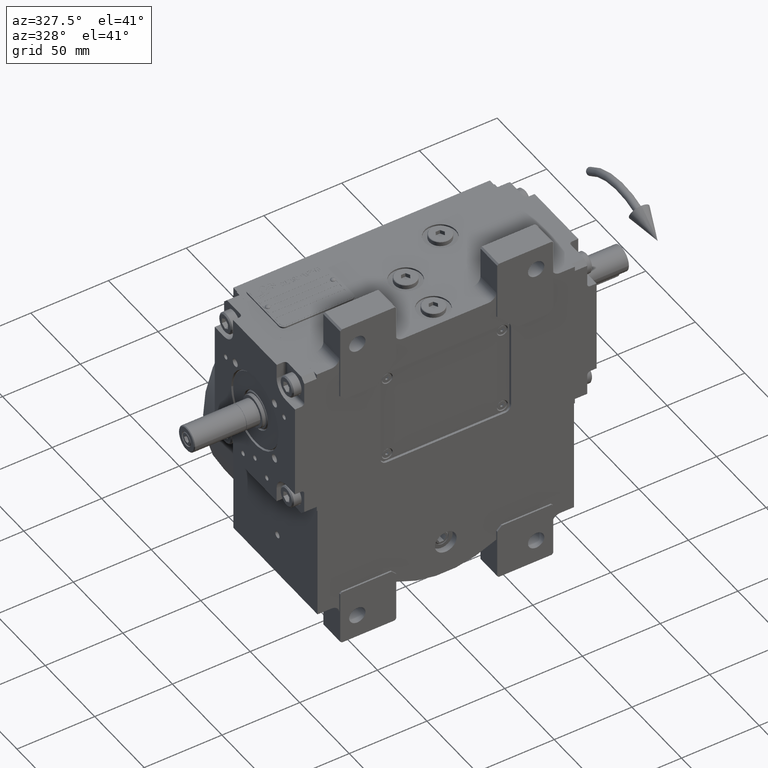
[diagram: clean part render]
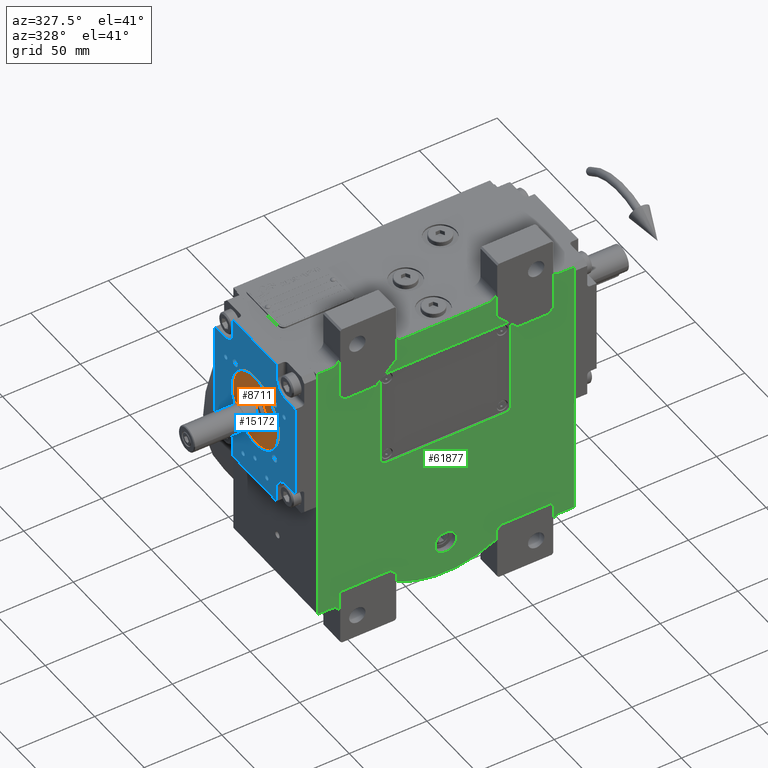
[diagram: same view with three faces highlighted in distinct colors, each labeled with its STEP entity id]
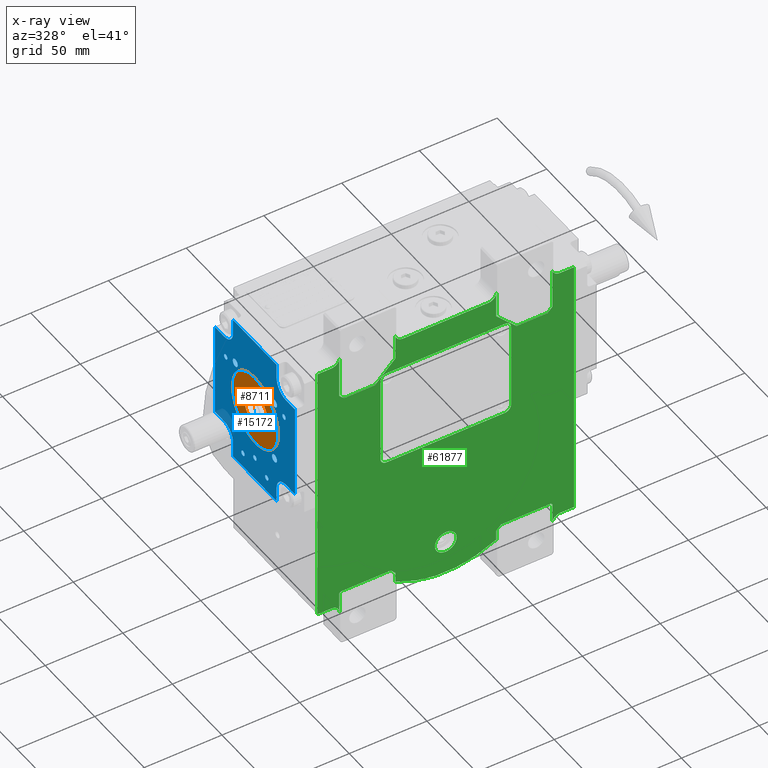
[diagram: x-ray of the same camera — body ghosted, the three highlighted faces saturated]
A machine part, auxiliary view with three faces highlighted in distinct colors.
The next image is the same camera in x-ray (body ghosted, the three faces saturated) — at least one of them is partly hidden behind the body in this view.
Their STEP definitions:

[orange] entity #8711 — the highlighted planar face has unit normal (1, -0, 0).
#1972 = CARTESIAN_POINT ( 'NONE',  ( 13.52923924614952078, 7.000000000000008882, -23.09585546212293039 ) ) ;
#2848 = CARTESIAN_POINT ( 'NONE',  ( 12.04009600442777739, 7.000000000000477840, 5.986840029364936902E-14 ) ) ;
#3423 = FACE_BOUND ( 'NONE', #42205, .T. ) ;
#3694 = CARTESIAN_POINT ( 'NONE',  ( -23.09585468350324433, 7.000000000000148326, -13.52923811714204660 ) ) ;
#3819 =( BOUNDED_CURVE ( )  B_SPLINE_CURVE ( 3, ( #34716, #18916, #3694, #38636 ),
 .UNSPECIFIED., .F., .F. ) 
 B_SPLINE_CURVE_WITH_KNOTS ( ( 4, 4 ),
 ( 1.062202122874949861, 2.632998440204151525 ),
 .UNSPECIFIED. ) 
 CURVE ( )  GEOMETRIC_REPRESENTATION_ITEM ( )  RATIONAL_B_SPLINE_CURVE ( ( 1.000000000000000000, 0.8047378563554508091, 0.8047378563554508091, 1.000000000000000000 ) ) 
 REPRESENTATION_ITEM ( '' )  );
#3905 = CARTESIAN_POINT ( 'NONE',  ( 0.000000000000000000, 7.000000000000006217, 3.491927662888562069E-14 ) ) ;
#6181 = CARTESIAN_POINT ( 'NONE',  ( -8.974545794016020039E-07, 6.999999999999943157, 23.09585494913720893 ) ) ;
#6513 = CARTESIAN_POINT ( 'NONE',  ( -23.09585401869729182, 6.999999542325357815, -2.173323981794041967E-08 ) ) ;
#6832 = EDGE_LOOP ( 'NONE', ( #63398, #23564, #33832 ) ) ;
#6843 = CARTESIAN_POINT ( 'NONE',  ( -2.619432448724978713E-13, 7.000000000000069278, -23.09585494913712367 ) ) ;
#8711 = ADVANCED_FACE ( 'NONE', ( #27994, #3423 ), #16757, .F. ) ;
#11051 = CARTESIAN_POINT ( 'NONE',  ( -13.52923972676703457, 7.000000000000004441, 23.09585493640613052 ) ) ;
#14111 = EDGE_CURVE ( 'NONE', #51088, #34642, #3819, .T. ) ;
#14714 = CARTESIAN_POINT ( 'NONE',  ( -12.04009600442772232, 7.000000000000006217, 1.125501430241480801E-14 ) ) ;
#16757 = PLANE ( 'NONE',  #49944 ) ;
#16877 = CARTESIAN_POINT ( 'NONE',  ( 13.52923793185786749, 6.999999999999880984, 23.09585496186828379 ) ) ;
#18476 = DIRECTION ( 'NONE',  ( 1.000000000000000000, 0.000000000000000000, 2.072169827847578757E-15 ) ) ;
#18916 = CARTESIAN_POINT ( 'NONE',  ( -13.52923841247535819, 7.000000000000130562, -23.09585443615135603 ) ) ;
#20284 = DIRECTION ( 'NONE',  ( 1.000000000000000000, 0.000000000000000000, 1.924633060802948895E-15 ) ) ;
#21928 = CARTESIAN_POINT ( 'NONE',  ( -23.09585401869729182, 6.999999542325357815, -2.173323981794041967E-08 ) ) ;
#22643 = CARTESIAN_POINT ( 'NONE',  ( 23.09585401869745169, 6.999999542325801904, 2.173331782437693210E-08 ) ) ;
#23564 = ORIENTED_EDGE ( 'NONE', *, *, #14111, .T. ) ;
#27049 =( BOUNDED_CURVE ( )  B_SPLINE_CURVE ( 3, ( #22643, #32380, #1972, #57240 ),
 .UNSPECIFIED., .F., .F. ) 
 B_SPLINE_CURVE_WITH_KNOTS ( ( 4, 4 ),
 ( 5.774591035009672524, 7.345387430054536537 ),
 .UNSPECIFIED. ) 
 CURVE ( )  GEOMETRIC_REPRESENTATION_ITEM ( )  RATIONAL_B_SPLINE_CURVE ( ( 1.000000000000000000, 0.8047378380376930540, 0.8047378380376930540, 1.000000000000000000 ) ) 
 REPRESENTATION_ITEM ( '' )  );
#27994 = FACE_OUTER_BOUND ( 'NONE', #6832, .T. ) ;
#28482 = DIRECTION ( 'NONE',  ( 2.153350692136835555E-17, -1.000000000000000000, -5.115350721226509550E-15 ) ) ;
#28939 = EDGE_CURVE ( 'NONE', #50205, #51088, #27049, .T. ) ;
#30759 = CARTESIAN_POINT ( 'NONE',  ( 23.09585401869745169, 6.999999542325801904, 2.173331782437693210E-08 ) ) ;
#31409 = CARTESIAN_POINT ( 'NONE',  ( 23.09585468350326209, 6.999999999999864109, 13.52923853397944143 ) ) ;
#31935 = VERTEX_POINT ( 'NONE', #14714 ) ;
#32380 = CARTESIAN_POINT ( 'NONE',  ( 23.09585573493669841, 6.999999999999936939, -13.52923890735007717 ) ) ;
#33818 = CIRCLE ( 'NONE', #54433, 12.04009600442784844 ) ;
#33832 = ORIENTED_EDGE ( 'NONE', *, *, #34145, .T. ) ;
#34145 = EDGE_CURVE ( 'NONE', #34642, #50205, #58022, .T. ) ;
#34642 = VERTEX_POINT ( 'NONE', #21928 ) ;
#34716 = CARTESIAN_POINT ( 'NONE',  ( -2.619432448724978713E-13, 7.000000000000069278, -23.09585494913712367 ) ) ;
#35818 = CARTESIAN_POINT ( 'NONE',  ( 0.000000000000000000, 7.000000000000006217, 3.669563346828587115E-14 ) ) ;
#36033 = CARTESIAN_POINT ( 'NONE',  ( 23.09585401869745169, 6.999999542325801904, 2.173331782437693210E-08 ) ) ;
#36466 = CARTESIAN_POINT ( 'NONE',  ( 0.000000000000000000, 7.000000000000006217, 3.580745504858574592E-14 ) ) ;
#38636 = CARTESIAN_POINT ( 'NONE',  ( -23.09585401869729182, 6.999999542325357815, -2.173323981794041967E-08 ) ) ;
#41643 = DIRECTION ( 'NONE',  ( -1.000000000000000000, 2.052305267934836626E-16, -1.998401444325262051E-15 ) ) ;
#42205 = EDGE_LOOP ( 'NONE', ( #42438, #62095 ) ) ;
#42343 = VERTEX_POINT ( 'NONE', #2848 ) ;
#42438 = ORIENTED_EDGE ( 'NONE', *, *, #53369, .F. ) ;
#49944 = AXIS2_PLACEMENT_3D ( 'NONE', #36466, #61950, #41643 ) ;
#50205 = VERTEX_POINT ( 'NONE', #36033 ) ;
#50351 = CIRCLE ( 'NONE', #55524, 12.04009600442786798 ) ;
#51088 = VERTEX_POINT ( 'NONE', #6843 ) ;
#53369 = EDGE_CURVE ( 'NONE', #42343, #31935, #33818, .T. ) ;
#54433 = AXIS2_PLACEMENT_3D ( 'NONE', #35818, #55515, #20284 ) ;
#55515 = DIRECTION ( 'NONE',  ( -2.153350692136835555E-17, 1.000000000000000000, 5.115350721226509550E-15 ) ) ;
#55524 = AXIS2_PLACEMENT_3D ( 'NONE', #3905, #28482, #18476 ) ;
#56589 = CARTESIAN_POINT ( 'NONE',  ( -23.09585573493670196, 7.000000000000073719, 13.52923849051282446 ) ) ;
#57240 = CARTESIAN_POINT ( 'NONE',  ( -2.619432448724978713E-13, 7.000000000000069278, -23.09585494913712367 ) ) ;
#58022 =( BOUNDED_CURVE ( )  B_SPLINE_CURVE ( 3, ( #6513, #56589, #11051, #6181, #16877, #31409, #30759 ),
 .UNSPECIFIED., .F., .F. ) 
 B_SPLINE_CURVE_WITH_KNOTS ( ( 4, 3, 4 ),
 ( 2.632998397732654983, 4.203794753919688709, 5.774591110106721992 ),
 .UNSPECIFIED. ) 
 CURVE ( )  GEOMETRIC_REPRESENTATION_ITEM ( )  RATIONAL_B_SPLINE_CURVE ( ( 1.000000000000000000, 0.8047378471965718205, 0.8047378471965718205, 1.000000000000000000, 0.8047378471965718205, 0.8047378471965718205, 1.000000000000000000 ) ) 
 REPRESENTATION_ITEM ( '' )  );
#61950 = DIRECTION ( 'NONE',  ( -2.052305267934734320E-16, -1.000000000000000000, -5.115350721226513494E-15 ) ) ;
#62095 = ORIENTED_EDGE ( 'NONE', *, *, #63919, .T. ) ;
#63398 = ORIENTED_EDGE ( 'NONE', *, *, #28939, .T. ) ;
#63919 = EDGE_CURVE ( 'NONE', #42343, #31935, #50351, .T. ) ;

[blue] entity #15172 — the highlighted planar face has unit normal (1, 0, -0).
#260 = DIRECTION ( 'NONE',  ( -1.000000000000000000, 0.000000000000000000, -2.943773171354580837E-14 ) ) ;
#453 = DIRECTION ( 'NONE',  ( 4.295482660299454155E-29, 1.000000000000000000, 3.774758283725543281E-15 ) ) ;
#474 = VERTEX_POINT ( 'NONE', #52226 ) ;
#699 = CARTESIAN_POINT ( 'NONE',  ( 1.566768470596048068, -14.00000000000009237, 23.86400311483101788 ) ) ;
#806 = VERTEX_POINT ( 'NONE', #8826 ) ;
#817 = DIRECTION ( 'NONE',  ( 1.000000000000000000, 0.000000000000000000, 2.852656382717415620E-14 ) ) ;
#1339 = CARTESIAN_POINT ( 'NONE',  ( 10.57957080955147511, -14.00000000000007994, 21.44796303468496035 ) ) ;
#1388 = ORIENTED_EDGE ( 'NONE', *, *, #10532, .F. ) ;
#1425 = AXIS2_PLACEMENT_3D ( 'NONE', #53119, #8847, #28546 ) ;
#1608 = CARTESIAN_POINT ( 'NONE',  ( 40.49999999999929656, -14.00000000000001243, -30.49999999999904077 ) ) ;
#1612 = ORIENTED_EDGE ( 'NONE', *, *, #5181, .T. ) ;
#1659 = CARTESIAN_POINT ( 'NONE',  ( 23.36748957619225564, -14.00000000000001954, 4.845252721683312558 ) ) ;
#1753 = DIRECTION ( 'NONE',  ( -1.000000000000000000, 0.000000000000000000, -2.775557561562892929E-14 ) ) ;
#1867 = EDGE_CURVE ( 'NONE', #15113, #12390, #2049, .T. ) ;
#1974 = CARTESIAN_POINT ( 'NONE',  ( -3.119331459816308882, -14.00000000000009237, 23.71108225105577461 ) ) ;
#2049 = LINE ( 'NONE', #7881, #28429 ) ;
#2340 = EDGE_CURVE ( 'NONE', #41184, #21815, #38737, .T. ) ;
#2403 = EDGE_CURVE ( 'NONE', #31322, #49852, #19354, .T. ) ;
#2411 = EDGE_CURVE ( 'NONE', #25565, #41770, #10026, .T. ) ;
#2531 = VERTEX_POINT ( 'NONE', #29718 ) ;
#2726 = CIRCLE ( 'NONE', #44075, 2.499999999999998668 ) ;
#2784 = CARTESIAN_POINT ( 'NONE',  ( -21.44833860699378647, -13.99999999999996092, -10.57860939760698749 ) ) ;
#3030 = EDGE_LOOP ( 'NONE', ( #55552, #51834 ) ) ;
#3046 = VERTEX_POINT ( 'NONE', #4131 ) ;
#3244 = CARTESIAN_POINT ( 'NONE',  ( 3.119326620315172605, -13.99999999999990941, -23.71108290340073665 ) ) ;
#3602 = CARTESIAN_POINT ( 'NONE',  ( -30.99999999999905498, -13.99999999999999822, 30.49999999999905498 ) ) ;
#3661 = AXIS2_PLACEMENT_3D ( 'NONE', #18052, #12259, #42316 ) ;
#3792 = CARTESIAN_POINT ( 'NONE',  ( -40.50000000000071054, -14.00000000000001243, -30.50000000000095568 ) ) ;
#3933 = ORIENTED_EDGE ( 'NONE', *, *, #18419, .T. ) ;
#4131 = CARTESIAN_POINT ( 'NONE',  ( -22.29898987322275872, -13.99999999999999822, 19.79898987322235726 ) ) ;
#4209 = CARTESIAN_POINT ( 'NONE',  ( 15.76650524893556238, -13.99999999999992717, -17.98226651476915805 ) ) ;
#4294 = CARTESIAN_POINT ( 'NONE',  ( -23.09942936675866676, -14.00000000000002309, 6.192947045178502030 ) ) ;
#4358 = VERTEX_POINT ( 'NONE', #7181 ) ;
#4615 = CARTESIAN_POINT ( 'NONE',  ( -14.56088801808533439, -14.00000000000007105, 18.97165839184616587 ) ) ;
#4857 = ORIENTED_EDGE ( 'NONE', *, *, #51767, .F. ) ;
#5023 = ORIENTED_EDGE ( 'NONE', *, *, #21169, .F. ) ;
#5158 = DIRECTION ( 'NONE',  ( -4.295482660299454155E-29, -1.000000000000000000, -3.774758283725543281E-15 ) ) ;
#5181 = EDGE_CURVE ( 'NONE', #21815, #43739, #50029, .T. ) ;
#6212 = ORIENTED_EDGE ( 'NONE', *, *, #2340, .T. ) ;
#6380 = CARTESIAN_POINT ( 'NONE',  ( -23.36748971678186138, -13.99999999999997868, -4.845252042924186320 ) ) ;
#6530 = CARTESIAN_POINT ( 'NONE',  ( 23.80536272683590227, -13.99999999999999112, -1.958930260381883004 ) ) ;
#6537 = CARTESIAN_POINT ( 'NONE',  ( 23.10547545258857483, -14.00000000000002132, 5.990997677066223659 ) ) ;
#6774 = EDGE_CURVE ( 'NONE', #23671, #3046, #14647, .T. ) ;
#6856 = CARTESIAN_POINT ( 'NONE',  ( 17.98245215247009199, -14.00000000000005329, 15.76637152696359578 ) ) ;
#7181 = CARTESIAN_POINT ( 'NONE',  ( 31.00000000000094502, -13.99999999999999822, 30.50000000000094147 ) ) ;
#7194 = CARTESIAN_POINT ( 'NONE',  ( 21.99999999999869971, -14.00000000000047073, -48.99999999999953104 ) ) ;
#7303 = DIRECTION ( 'NONE',  ( 4.295482660299454155E-29, 1.000000000000000000, 3.774758283725543281E-15 ) ) ;
#7363 = ORIENTED_EDGE ( 'NONE', *, *, #33428, .F. ) ;
#7643 = EDGE_CURVE ( 'NONE', #48238, #48076, #23870, .T. ) ;
#7667 = CARTESIAN_POINT ( 'NONE',  ( -14.56055017842635557, -13.99999999999993072, -18.97195719011450876 ) ) ;
#7670 = CARTESIAN_POINT ( 'NONE',  ( 40.50000000000094502, -13.99999999999999822, 30.50000000000117950 ) ) ;
#7803 = CARTESIAN_POINT ( 'NONE',  ( 10.57953246189510566, -13.99999999999992006, -21.44790635888606900 ) ) ;
#7819 = EDGE_CURVE ( 'NONE', #27301, #8692, #49990, .T. ) ;
#7881 = CARTESIAN_POINT ( 'NONE',  ( -40.49999999999905498, -13.99999999999999822, 30.49999999999882050 ) ) ;
#7899 = EDGE_CURVE ( 'NONE', #10120, #54233, #25196, .T. ) ;
#7904 = EDGE_CURVE ( 'NONE', #48238, #25877, #51656, .T. ) ;
#7938 = CARTESIAN_POINT ( 'NONE',  ( -31.00000000000106226, -14.00000000000001243, -39.50000000000092371 ) ) ;
#8154 = ORIENTED_EDGE ( 'NONE', *, *, #6774, .F. ) ;
#8282 = DIRECTION ( 'NONE',  ( -1.000000000000000000, -4.294175747842013256E-29, -2.831068712794148863E-14 ) ) ;
#8304 = DIRECTION ( 'NONE',  ( 1.000000000000000000, 0.000000000000000000, 2.775557561562892929E-14 ) ) ;
#8370 = ORIENTED_EDGE ( 'NONE', *, *, #7643, .T. ) ;
#8374 = EDGE_LOOP ( 'NONE', ( #7363, #60513 ) ) ;
#8676 = DIRECTION ( 'NONE',  ( -1.000000000000000000, 0.000000000000000000, -1.471886585677291996E-14 ) ) ;
#8692 = VERTEX_POINT ( 'NONE', #42582 ) ;
#8804 = DIRECTION ( 'NONE',  ( 2.831068712794148547E-14, 3.774758283725543281E-15, 1.000000000000000000 ) ) ;
#8826 = CARTESIAN_POINT ( 'NONE',  ( -10.34999999999887876, -13.99999999999998401, 39.49999999999953104 ) ) ;
#8847 = DIRECTION ( 'NONE',  ( -4.295482660299454155E-29, -1.000000000000000000, -3.774758283725543281E-15 ) ) ;
#9085 = DIRECTION ( 'NONE',  ( -1.000000000000000000, 0.000000000000000000, -2.943773171354580837E-14 ) ) ;
#9194 = VERTEX_POINT ( 'NONE', #19748 ) ;
#9485 = CARTESIAN_POINT ( 'NONE',  ( -18.97212075496599226, -14.00000000000005507, 14.56041685813999997 ) ) ;
#9815 = DIRECTION ( 'NONE',  ( 1.000000000000000000, 0.000000000000000000, 2.636779683484748046E-14 ) ) ;
#10026 = CIRCLE ( 'NONE', #17295, 1.650000000000000355 ) ;
#10120 = VERTEX_POINT ( 'NONE', #39315 ) ;
#10532 = EDGE_CURVE ( 'NONE', #10838, #44201, #2726, .T. ) ;
#10658 = DIRECTION ( 'NONE',  ( -4.295482660299454155E-29, -1.000000000000000000, -3.774758283725543281E-15 ) ) ;
#10838 = VERTEX_POINT ( 'NONE', #36955 ) ;
#11070 = CARTESIAN_POINT ( 'NONE',  ( 23.32664490037724292, -14.00000000000002132, 5.038317025994189180 ) ) ;
#11157 = CARTESIAN_POINT ( 'NONE',  ( 17.29898987322275872, -13.99999999999999822, -19.79898987322287240 ) ) ;
#11242 = CARTESIAN_POINT ( 'NONE',  ( -22.34697688814391370, -13.99999999999996980, -8.409466773888212288 ) ) ;
#11246 = DIRECTION ( 'NONE',  ( 2.831068712794148547E-14, 3.774758283725543281E-15, 1.000000000000000000 ) ) ;
#11263 = CARTESIAN_POINT ( 'NONE',  ( 30.99999999999893774, -14.00000000000001243, -39.49999999999906208 ) ) ;
#11393 = CARTESIAN_POINT ( 'NONE',  ( 22.34697646102477364, -14.00000000000003197, 8.409467918700963551 ) ) ;
#11498 = CIRCLE ( 'NONE', #47621, 9.000000000000001776 ) ;
#11518 = AXIS2_PLACEMENT_3D ( 'NONE', #47225, #27811, #46287 ) ;
#11567 = CARTESIAN_POINT ( 'NONE',  ( -23.86397420030304772, -13.99999855607482502, -1.113405617703122630E-07 ) ) ;
#11983 = EDGE_LOOP ( 'NONE', ( #1388, #26532 ) ) ;
#12173 = FACE_BOUND ( 'NONE', #27966, .T. ) ;
#12203 = CARTESIAN_POINT ( 'NONE',  ( -23.86245127016168865, -13.99999999999999467, -1.574215097676592512 ) ) ;
#12259 = DIRECTION ( 'NONE',  ( -4.295482660299454155E-29, -1.000000000000000000, -3.774758283725543281E-15 ) ) ;
#12312 = EDGE_LOOP ( 'NONE', ( #32567, #8370, #27121, #41315, #38939, #3933, #30813, #30155, #62942, #14823, #59091, #26092, #40608, #63162, #21008, #4857 ) ) ;
#12390 = VERTEX_POINT ( 'NONE', #3602 ) ;
#12526 = CARTESIAN_POINT ( 'NONE',  ( -3.118952648202116595, -13.99999999999990941, -23.71108882256597639 ) ) ;
#12667 = CARTESIAN_POINT ( 'NONE',  ( 18.97211941539627844, -13.99999999999994138, -14.56041862828626066 ) ) ;
#12970 = DIRECTION ( 'NONE',  ( 1.000000000000000000, 0.000000000000000000, 2.636779683484748046E-14 ) ) ;
#12975 = DIRECTION ( 'NONE',  ( -4.295482660299454155E-29, -1.000000000000000000, -3.774758283725543281E-15 ) ) ;
#13106 = ORIENTED_EDGE ( 'NONE', *, *, #29754, .F. ) ;
#13286 = CARTESIAN_POINT ( 'NONE',  ( 29.44486372867042689, -13.99999999999999822, -16.99999999999905853 ) ) ;
#13359 = CARTESIAN_POINT ( 'NONE',  ( 21.99999999999893774, -14.00000000000001243, -39.49999999999953815 ) ) ;
#14029 = CIRCLE ( 'NONE', #41952, 2.499999999999998668 ) ;
#14336 = CARTESIAN_POINT ( 'NONE',  ( -23.80536274324691703, -14.00000000000000711, 1.958929982868600650 ) ) ;
#14539 = DIRECTION ( 'NONE',  ( -4.295482660299454155E-29, -1.000000000000000000, -3.774758283725543281E-15 ) ) ;
#14585 = VECTOR ( 'NONE', #44218, 1000.000000000000000 ) ;
#14647 = CIRCLE ( 'NONE', #47669, 2.499999999999998668 ) ;
#14658 = CARTESIAN_POINT ( 'NONE',  ( -11.95544121681367677, -14.00000000000007994, 20.71254616477397903 ) ) ;
#14664 = CARTESIAN_POINT ( 'NONE',  ( -22.29898987322393822, -13.99999999999999822, -19.79898987322428638 ) ) ;
#14823 = ORIENTED_EDGE ( 'NONE', *, *, #38897, .T. ) ;
#14873 = ORIENTED_EDGE ( 'NONE', *, *, #19112, .F. ) ;
#14887 = CARTESIAN_POINT ( 'NONE',  ( -19.79898987322275872, -13.99999999999999822, 19.79898987322282267 ) ) ;
#15113 = VERTEX_POINT ( 'NONE', #30609 ) ;
#15172 = ADVANCED_FACE ( 'NONE', ( #23104, #27963, #62559, #22474, #38322, #18599, #17961, #18284, #51927, #12173, #37674 ), #37997, .F. ) ;
#15283 = ORIENTED_EDGE ( 'NONE', *, *, #7899, .F. ) ;
#15293 = CARTESIAN_POINT ( 'NONE',  ( -6.191965501752854983, -14.00000000000008527, 23.09972859531175615 ) ) ;
#15383 = VECTOR ( 'NONE', #8804, 1000.000000000000000 ) ;
#15521 = CIRCLE ( 'NONE', #56803, 2.499999999999998668 ) ;
#15941 = CARTESIAN_POINT ( 'NONE',  ( 7.685169508964895257, -14.00000000000008527, 22.64680274495815482 ) ) ;
#15962 = VECTOR ( 'NONE', #22973, 1000.000000000000000 ) ;
#16004 = CARTESIAN_POINT ( 'NONE',  ( 22.29898987322393822, -13.99999999999999822, 19.79898987322382098 ) ) ;
#16033 = EDGE_CURVE ( 'NONE', #44201, #10838, #62073, .T. ) ;
#16116 = CARTESIAN_POINT ( 'NONE',  ( -7.685173543682704889, -13.99999999999991118, -22.64680135628322333 ) ) ;
#16307 = ORIENTED_EDGE ( 'NONE', *, *, #41837, .F. ) ;
#16424 = CARTESIAN_POINT ( 'NONE',  ( -20.71277920861294675, -13.99999999999995559, -11.95494192533104361 ) ) ;
#16753 = AXIS2_PLACEMENT_3D ( 'NONE', #21305, #10658, #46529 ) ;
#16964 = DIRECTION ( 'NONE',  ( 1.000000000000000000, 4.294175747842013256E-29, 2.831068712794148863E-14 ) ) ;
#17063 = CARTESIAN_POINT ( 'NONE',  ( -15.76640134121093695, -13.99999999999992895, -17.98226844684482728 ) ) ;
#17104 = EDGE_CURVE ( 'NONE', #46348, #2531, #58019, .T. ) ;
#17295 = AXIS2_PLACEMENT_3D ( 'NONE', #47870, #12975, #9085 ) ;
#17347 = CARTESIAN_POINT ( 'NONE',  ( 1.571558834619984456E-28, -13.99999999999999822, 0.000000000000000000 ) ) ;
#17472 = DIRECTION ( 'NONE',  ( -1.000000000000000000, -4.294175747842013256E-29, -2.831068712794148863E-14 ) ) ;
#17669 = CARTESIAN_POINT ( 'NONE',  ( 21.99999999999869971, -14.00000000000047073, -48.99999999999953104 ) ) ;
#17694 = B_SPLINE_CURVE_WITH_KNOTS ( 'NONE', 3,
 ( #23674, #43442, #14336, #63131, #48592, #18871, #58285, #4294, #24002, #48910, #43772, #9485, #29181, #29497, #4615, #14658, #51143, #50176, #15293, #1974, #41149, #699, #55670, #55038, #15941, #1339, #35638, #45990, #31113, #6856, #46299, #49853, #55356, #11393, #50824, #6537, #36286, #11070, #1659, #25919, #21709, #45671 ),
 .UNSPECIFIED., .F., .F.,
 ( 4, 1, 1, 2, 2, 2, 2, 2, 2, 2, 2, 2, 2, 2, 2, 2, 2, 2, 1, 1, 2, 2, 4 ),
 ( 0.000000000000000000, 0.03125000000000020123, 0.04687500000000029143, 0.05468750000000034694, 0.06250000000000038858, 0.1250000000000004718, 0.1875000000000005551, 0.2500000000000006661, 0.3125000000000006661, 0.3750000000000006661, 0.4375000000000007216, 0.5000000000000006661, 0.5625000000000007772, 0.6250000000000007772, 0.6875000000000007772, 0.7500000000000006661, 0.8125000000000005551, 0.8750000000000004441, 0.9062500000000004441, 0.9218750000000003331, 0.9296875000000003331, 0.9375000000000002220, 1.000000000000000000 ),
 .UNSPECIFIED. ) ;
#17821 = DIRECTION ( 'NONE',  ( -1.000000000000000000, 0.000000000000000000, -2.733503659114971031E-14 ) ) ;
#17961 = FACE_BOUND ( 'NONE', #3030, .T. ) ;
#18052 = CARTESIAN_POINT ( 'NONE',  ( 9.625633623500127400E-13, -13.99999999999999822, 34.00000000000000000 ) ) ;
#18134 = VECTOR ( 'NONE', #28369, 1000.000000000000000 ) ;
#18242 = EDGE_CURVE ( 'NONE', #48797, #9194, #32238, .T. ) ;
#18284 = FACE_BOUND ( 'NONE', #19063, .T. ) ;
#18419 = EDGE_CURVE ( 'NONE', #474, #46348, #63275, .T. ) ;
#18581 = CARTESIAN_POINT ( 'NONE',  ( 40.50000000000094502, -13.99999999999999822, 30.50000000000117950 ) ) ;
#18599 = FACE_BOUND ( 'NONE', #56512, .T. ) ;
#18871 = CARTESIAN_POINT ( 'NONE',  ( -23.47920126455800371, -14.00000000000001421, 4.271604035881808592 ) ) ;
#19063 = EDGE_LOOP ( 'NONE', ( #15283, #5023 ) ) ;
#19112 = EDGE_CURVE ( 'NONE', #50025, #56746, #19830, .T. ) ;
#19354 = CIRCLE ( 'NONE', #42076, 1.649999999999998579 ) ;
#19451 = LINE ( 'NONE', #48558, #15383 ) ;
#19685 = CARTESIAN_POINT ( 'NONE',  ( -21.99999999999858247, -13.99999999999952749, 48.99999999999953104 ) ) ;
#19748 = CARTESIAN_POINT ( 'NONE',  ( -1.649999999999034239, -13.99999999999999822, 34.00000000000000000 ) ) ;
#19830 = CIRCLE ( 'NONE', #38438, 2.499999999999998668 ) ;
#20132 = EDGE_CURVE ( 'NONE', #44764, #38485, #37695, .T. ) ;
#20817 = CARTESIAN_POINT ( 'NONE',  ( 1.650000000000965805, -13.99999999999999822, 34.00000000000000000 ) ) ;
#21008 = ORIENTED_EDGE ( 'NONE', *, *, #42774, .T. ) ;
#21169 = EDGE_CURVE ( 'NONE', #54233, #10120, #14029, .T. ) ;
#21305 = CARTESIAN_POINT ( 'NONE',  ( 9.625633623500127400E-13, -13.99999999999999822, 34.00000000000000000 ) ) ;
#21386 = CARTESIAN_POINT ( 'NONE',  ( 23.47920115566111221, -13.99999999999998224, -4.271604635540419359 ) ) ;
#21483 = DIRECTION ( 'NONE',  ( -4.295482660299454155E-29, -1.000000000000000000, -3.774758283725543281E-15 ) ) ;
#21544 = AXIS2_PLACEMENT_3D ( 'NONE', #62784, #42145, #28207 ) ;
#21570 = LINE ( 'NONE', #51317, #40657 ) ;
#21709 = CARTESIAN_POINT ( 'NONE',  ( 23.86245126994556287, -14.00000000000001066, 1.574215321675275447 ) ) ;
#21815 = VERTEX_POINT ( 'NONE', #32399 ) ;
#22108 = AXIS2_PLACEMENT_3D ( 'NONE', #32258, #36486, #42598 ) ;
#22438 = CARTESIAN_POINT ( 'NONE',  ( -22.00000000000129674, -14.00000000000047073, -49.00000000000093081 ) ) ;
#22474 = FACE_OUTER_BOUND ( 'NONE', #12312, .T. ) ;
#22503 = CARTESIAN_POINT ( 'NONE',  ( -22.74139576683487007, -13.99999999999997158, -7.307389396848209984 ) ) ;
#22562 = CARTESIAN_POINT ( 'NONE',  ( 31.09486372867042547, -13.99999999999999822, -16.99999999999905853 ) ) ;
#22871 = CARTESIAN_POINT ( 'NONE',  ( 23.86397420030310101, -13.99999855607482502, 1.113405617703122630E-07 ) ) ;
#22903 = CARTESIAN_POINT ( 'NONE',  ( 40.49999999999929656, -14.00000000000001243, -30.49999999999904077 ) ) ;
#22973 = DIRECTION ( 'NONE',  ( -1.000000000000000000, -4.294175747842013256E-29, -2.831068712794148863E-14 ) ) ;
#23104 = FACE_BOUND ( 'NONE', #8374, .T. ) ;
#23671 = VERTEX_POINT ( 'NONE', #33292 ) ;
#23674 = CARTESIAN_POINT ( 'NONE',  ( -23.86397420030304772, -13.99999855607482502, -1.113405617703122630E-07 ) ) ;
#23870 = LINE ( 'NONE', #19685, #31422 ) ;
#24002 = CARTESIAN_POINT ( 'NONE',  ( -22.64668203140375269, -14.00000000000003020, 7.685839165587933230 ) ) ;
#24042 = CARTESIAN_POINT ( 'NONE',  ( -22.00000000000129674, -14.00000000000047073, -49.00000000000093081 ) ) ;
#24390 = AXIS2_PLACEMENT_3D ( 'NONE', #36643, #37264, #56342 ) ;
#25196 = CIRCLE ( 'NONE', #22108, 2.499999999999998668 ) ;
#25354 = CIRCLE ( 'NONE', #61496, 1.649999999999998579 ) ;
#25565 = VERTEX_POINT ( 'NONE', #63500 ) ;
#25877 = VERTEX_POINT ( 'NONE', #43421 ) ;
#25919 = CARTESIAN_POINT ( 'NONE',  ( 23.70962956883355588, -14.00000000000001243, 3.125609056103567429 ) ) ;
#26092 = ORIENTED_EDGE ( 'NONE', *, *, #37874, .F. ) ;
#26093 = CARTESIAN_POINT ( 'NONE',  ( -23.70962961231633770, -13.99999999999998401, -3.125608614640585259 ) ) ;
#26230 = CARTESIAN_POINT ( 'NONE',  ( 23.54577769822290634, -13.99999999999998046, -3.887975449872154599 ) ) ;
#26436 = DIRECTION ( 'NONE',  ( 1.000000000000000000, 4.294175747842013256E-29, 2.831068712794148863E-14 ) ) ;
#26532 = ORIENTED_EDGE ( 'NONE', *, *, #16033, .F. ) ;
#26726 = CARTESIAN_POINT ( 'NONE',  ( -10.57957418679679229, -13.99999999999991651, -21.44796135337860932 ) ) ;
#27000 = CARTESIAN_POINT ( 'NONE',  ( -30.99999999999893774, -13.99999999999998401, 39.49999999999905498 ) ) ;
#27121 = ORIENTED_EDGE ( 'NONE', *, *, #30529, .T. ) ;
#27193 = LINE ( 'NONE', #62100, #15962 ) ;
#27301 = VERTEX_POINT ( 'NONE', #13359 ) ;
#27360 = CARTESIAN_POINT ( 'NONE',  ( -17.98245375129773294, -13.99999999999993605, -15.76636968212421763 ) ) ;
#27454 = AXIS2_PLACEMENT_3D ( 'NONE', #14887, #5158, #34582 ) ;
#27738 = EDGE_LOOP ( 'NONE', ( #6212, #1612, #59343 ) ) ;
#27806 = AXIS2_PLACEMENT_3D ( 'NONE', #53586, #38090, #29326 ) ;
#27811 = DIRECTION ( 'NONE',  ( -4.295482660299454155E-29, -1.000000000000000000, -3.774758283725543281E-15 ) ) ;
#27862 = EDGE_CURVE ( 'NONE', #3046, #23671, #29524, .T. ) ;
#27963 = FACE_BOUND ( 'NONE', #29424, .T. ) ;
#27966 = EDGE_LOOP ( 'NONE', ( #14873, #16307 ) ) ;
#28207 = DIRECTION ( 'NONE',  ( 1.000000000000000000, 0.000000000000000000, 2.943773171354580837E-14 ) ) ;
#28369 = DIRECTION ( 'NONE',  ( -2.831068712794148547E-14, -3.774758283725543281E-15, -1.000000000000000000 ) ) ;
#28429 = VECTOR ( 'NONE', #16964, 1000.000000000000000 ) ;
#28546 = DIRECTION ( 'NONE',  ( 1.000000000000000000, 0.000000000000000000, 2.943773171354580837E-14 ) ) ;
#29181 = CARTESIAN_POINT ( 'NONE',  ( -17.98235932460677233, -14.00000000000005862, 15.76636488206861486 ) ) ;
#29326 = DIRECTION ( 'NONE',  ( 1.000000000000000000, 0.000000000000000000, 3.784851220313037103E-14 ) ) ;
#29350 = VERTEX_POINT ( 'NONE', #31359 ) ;
#29424 = EDGE_LOOP ( 'NONE', ( #13106, #30965 ) ) ;
#29497 = CARTESIAN_POINT ( 'NONE',  ( -15.76650740898569225, -14.00000000000006750, 17.98226460072634225 ) ) ;
#29524 = CIRCLE ( 'NONE', #27454, 2.499999999999998668 ) ;
#29611 = AXIS2_PLACEMENT_3D ( 'NONE', #27000, #7303, #817 ) ;
#29718 = CARTESIAN_POINT ( 'NONE',  ( -22.00000000000105871, -14.00000000000001243, -39.50000000000092371 ) ) ;
#29754 = EDGE_CURVE ( 'NONE', #49852, #31322, #48136, .T. ) ;
#30155 = ORIENTED_EDGE ( 'NONE', *, *, #46236, .F. ) ;
#30489 = CIRCLE ( 'NONE', #3661, 1.649999999999999911 ) ;
#30529 = EDGE_CURVE ( 'NONE', #48076, #12390, #44089, .T. ) ;
#30532 = CARTESIAN_POINT ( 'NONE',  ( 13.65000000000112124, -13.99999999999998401, 39.50000000000046185 ) ) ;
#30609 = CARTESIAN_POINT ( 'NONE',  ( -40.49999999999905498, -13.99999999999999822, 30.49999999999882050 ) ) ;
#30813 = ORIENTED_EDGE ( 'NONE', *, *, #17104, .T. ) ;
#30959 = CARTESIAN_POINT ( 'NONE',  ( -11.95576278632398903, -13.99999999999991829, -20.71224872910296000 ) ) ;
#30965 = ORIENTED_EDGE ( 'NONE', *, *, #2403, .F. ) ;
#30981 = DIRECTION ( 'NONE',  ( -1.000000000000000000, 0.000000000000000000, -2.852656382717415620E-14 ) ) ;
#31104 = CARTESIAN_POINT ( 'NONE',  ( 23.86397420030310101, -13.99999855607482502, 1.113405617703122630E-07 ) ) ;
#31113 = CARTESIAN_POINT ( 'NONE',  ( 15.76639915680304682, -14.00000000000006750, 17.98227038497826769 ) ) ;
#31205 = CARTESIAN_POINT ( 'NONE',  ( -19.79898987322393822, -13.99999999999999822, -19.79898987322428638 ) ) ;
#31322 = VERTEX_POINT ( 'NONE', #48876 ) ;
#31359 = CARTESIAN_POINT ( 'NONE',  ( -13.64999999999887947, -13.99999999999998401, 39.49999999999953104 ) ) ;
#31422 = VECTOR ( 'NONE', #52987, 1000.000000000000000 ) ;
#31599 = CARTESIAN_POINT ( 'NONE',  ( -1.566773563360392973, -13.99999999999990763, -23.86400276692703670 ) ) ;
#31893 = CIRCLE ( 'NONE', #21544, 1.650000000000000355 ) ;
#32238 = CIRCLE ( 'NONE', #16753, 1.649999999999999911 ) ;
#32257 = EDGE_CURVE ( 'NONE', #806, #29350, #31893, .T. ) ;
#32258 = CARTESIAN_POINT ( 'NONE',  ( -19.79898987322393822, -13.99999999999999822, -19.79898987322428638 ) ) ;
#32377 = CARTESIAN_POINT ( 'NONE',  ( 1.566774008614369773, -13.99999999999990763, -23.86393752002926050 ) ) ;
#32399 = CARTESIAN_POINT ( 'NONE',  ( -2.721109384656056105E-10, -13.99999927803739830, -23.86397666347577484 ) ) ;
#32567 = ORIENTED_EDGE ( 'NONE', *, *, #7904, .F. ) ;
#33292 = CARTESIAN_POINT ( 'NONE',  ( -17.29898987322275872, -13.99999999999999822, 19.79898987322282267 ) ) ;
#33315 = VECTOR ( 'NONE', #17472, 1000.000000000000000 ) ;
#33329 = DIRECTION ( 'NONE',  ( -4.295482660299454155E-29, -1.000000000000000000, -3.774758283725543281E-15 ) ) ;
#33428 = EDGE_CURVE ( 'NONE', #43849, #33959, #61864, .T. ) ;
#33959 = VERTEX_POINT ( 'NONE', #40151 ) ;
#34582 = DIRECTION ( 'NONE',  ( -1.000000000000000000, 0.000000000000000000, -2.775557561562892929E-14 ) ) ;
#35445 = CARTESIAN_POINT ( 'NONE',  ( 17.29898987322393822, -13.99999999999999822, 19.79898987322381743 ) ) ;
#35466 = VECTOR ( 'NONE', #55525, 1000.000000000000000 ) ;
#35638 = CARTESIAN_POINT ( 'NONE',  ( 11.95575968379388243, -14.00000000000007994, 20.71225054030661639 ) ) ;
#36286 = CARTESIAN_POINT ( 'NONE',  ( 23.24092213513678118, -14.00000000000002132, 5.420264589931520050 ) ) ;
#36486 = DIRECTION ( 'NONE',  ( -4.295482660299454155E-29, -1.000000000000000000, -3.774758283725543281E-15 ) ) ;
#36643 = CARTESIAN_POINT ( 'NONE',  ( 29.44486372867042689, -13.99999999999999822, -16.99999999999905853 ) ) ;
#36713 = LINE ( 'NONE', #22438, #50900 ) ;
#36781 = CARTESIAN_POINT ( 'NONE',  ( -23.10547566701053768, -13.99999999999997335, -5.990996842902134745 ) ) ;
#36955 = CARTESIAN_POINT ( 'NONE',  ( 22.29898987322275872, -13.99999999999999822, -19.79898987322287240 ) ) ;
#36981 = EDGE_CURVE ( 'NONE', #43739, #41184, #17694, .T. ) ;
#37062 = DIRECTION ( 'NONE',  ( -1.498077582325793783E-28, 1.000000000000000000, 3.774758283725543281E-15 ) ) ;
#37264 = DIRECTION ( 'NONE',  ( -4.295482660299454155E-29, -1.000000000000000000, -3.774758283725543281E-15 ) ) ;
#37645 = CARTESIAN_POINT ( 'NONE',  ( 22.00000000000105871, -13.99999999999998401, 39.50000000000071054 ) ) ;
#37674 = FACE_BOUND ( 'NONE', #42409, .T. ) ;
#37695 = LINE ( 'NONE', #17669, #47797 ) ;
#37861 = CARTESIAN_POINT ( 'NONE',  ( 17.98235770176432879, -13.99999999999993783, -15.76636675099964080 ) ) ;
#37874 = EDGE_CURVE ( 'NONE', #54806, #8692, #51413, .T. ) ;
#37997 = PLANE ( 'NONE',  #46506 ) ;
#38090 = DIRECTION ( 'NONE',  ( -4.295482660299454155E-29, -1.000000000000000000, -3.774758283725543281E-15 ) ) ;
#38322 = FACE_BOUND ( 'NONE', #27738, .T. ) ;
#38438 = AXIS2_PLACEMENT_3D ( 'NONE', #62085, #33329, #12970 ) ;
#38485 = VERTEX_POINT ( 'NONE', #24042 ) ;
#38539 = ORIENTED_EDGE ( 'NONE', *, *, #62398, .F. ) ;
#38737 = B_SPLINE_CURVE_WITH_KNOTS ( 'NONE', 3,
 ( #31104, #50818, #6530, #45981, #26230, #21386, #60821, #47553, #48511, #56921, #43039, #12667, #37861, #4209, #52718, #62724, #7803, #63364, #58203, #3244, #32377, #52084 ),
 .UNSPECIFIED., .F., .F.,
 ( 4, 1, 1, 2, 2, 2, 2, 2, 2, 2, 2, 4 ),
 ( 0.000000000000000000, 0.03125000444582186343, 0.04687500666873279515, 0.05468750778018826447, 0.06250000889164369910, 0.1250000177832869819, 0.1875000266749302924, 0.2500000355665735752, 0.3125000444582168857, 0.3750000533498602517, 0.4375000622415035623, 0.5000000711331469283 ),
 .UNSPECIFIED. ) ;
#38897 = EDGE_CURVE ( 'NONE', #44764, #27301, #19451, .T. ) ;
#38939 = ORIENTED_EDGE ( 'NONE', *, *, #63318, .F. ) ;
#39055 = DIRECTION ( 'NONE',  ( -4.295482660299454155E-29, -1.000000000000000000, -3.774758283725543281E-15 ) ) ;
#39315 = CARTESIAN_POINT ( 'NONE',  ( -17.29898987322393822, -13.99999999999999822, -19.79898987322381743 ) ) ;
#39603 = CARTESIAN_POINT ( 'NONE',  ( 19.79898987322393822, -13.99999999999999822, 19.79898987322378190 ) ) ;
#39615 = CARTESIAN_POINT ( 'NONE',  ( 31.00000000000106226, -13.99999999999998401, 39.50000000000071054 ) ) ;
#40151 = CARTESIAN_POINT ( 'NONE',  ( -31.09486372867137050, -13.99999999999999822, -17.00000000000093081 ) ) ;
#40608 = ORIENTED_EDGE ( 'NONE', *, *, #63397, .F. ) ;
#40657 = VECTOR ( 'NONE', #11246, 1000.000000000000000 ) ;
#41149 = CARTESIAN_POINT ( 'NONE',  ( -1.566779169208735389, -14.00000000000008882, 23.86393717191058528 ) ) ;
#41184 = VERTEX_POINT ( 'NONE', #22871 ) ;
#41315 = ORIENTED_EDGE ( 'NONE', *, *, #1867, .F. ) ;
#41718 = CARTESIAN_POINT ( 'NONE',  ( -27.79486372867136978, -13.99999999999999822, -17.00000000000093081 ) ) ;
#41770 = VERTEX_POINT ( 'NONE', #30532 ) ;
#41837 = EDGE_CURVE ( 'NONE', #56746, #50025, #15521, .T. ) ;
#41952 = AXIS2_PLACEMENT_3D ( 'NONE', #31205, #21483, #1753 ) ;
#42076 = AXIS2_PLACEMENT_3D ( 'NONE', #13286, #42718, #17821 ) ;
#42145 = DIRECTION ( 'NONE',  ( -4.295482660299454155E-29, -1.000000000000000000, -3.774758283725543281E-15 ) ) ;
#42316 = DIRECTION ( 'NONE',  ( -1.000000000000000000, 0.000000000000000000, -2.943773171354582099E-14 ) ) ;
#42409 = EDGE_LOOP ( 'NONE', ( #8154, #47044 ) ) ;
#42582 = CARTESIAN_POINT ( 'NONE',  ( 30.99999999999917577, -14.00000000000001243, -30.49999999999905498 ) ) ;
#42598 = DIRECTION ( 'NONE',  ( 1.000000000000000000, 0.000000000000000000, 2.775557561562892929E-14 ) ) ;
#42718 = DIRECTION ( 'NONE',  ( -4.295482660299454155E-29, -1.000000000000000000, -3.774758283725543281E-15 ) ) ;
#42774 = EDGE_CURVE ( 'NONE', #4358, #55709, #11498, .T. ) ;
#42859 = DIRECTION ( 'NONE',  ( 1.000000000000000000, 4.294175747842013256E-29, 2.831068712794148863E-14 ) ) ;
#42954 = LINE ( 'NONE', #44223, #18134 ) ;
#43039 = CARTESIAN_POINT ( 'NONE',  ( 20.71231213005230032, -13.99999999999995559, -11.95552765314615229 ) ) ;
#43421 = CARTESIAN_POINT ( 'NONE',  ( 22.00000000000141398, -13.99999999999952749, 49.00000000000071054 ) ) ;
#43442 = CARTESIAN_POINT ( 'NONE',  ( -23.86322586908651289, -14.00000000000000355, 0.7869472472480262271 ) ) ;
#43739 = VERTEX_POINT ( 'NONE', #45271 ) ;
#43772 = CARTESIAN_POINT ( 'NONE',  ( -20.71231301861905649, -14.00000000000004263, 11.95552608799911098 ) ) ;
#43814 = DIRECTION ( 'NONE',  ( 2.775557561562890720E-14, 3.854941057726237111E-15, 1.000000000000000000 ) ) ;
#43849 = VERTEX_POINT ( 'NONE', #41718 ) ;
#44075 = AXIS2_PLACEMENT_3D ( 'NONE', #57995, #47978, #9815 ) ;
#44089 = CIRCLE ( 'NONE', #29611, 9.000000000000001776 ) ;
#44144 = DIRECTION ( 'NONE',  ( -4.295482660299454155E-29, -1.000000000000000000, -3.774758283725543281E-15 ) ) ;
#44154 = DIRECTION ( 'NONE',  ( -2.775557561562890720E-14, -3.854941057726237111E-15, -1.000000000000000000 ) ) ;
#44201 = VERTEX_POINT ( 'NONE', #11157 ) ;
#44218 = DIRECTION ( 'NONE',  ( 1.000000000000000000, 4.294175747842013256E-29, 2.831068712794148863E-14 ) ) ;
#44223 = CARTESIAN_POINT ( 'NONE',  ( 22.00000000000141398, -13.99999999999952749, 49.00000000000071054 ) ) ;
#44581 = CARTESIAN_POINT ( 'NONE',  ( -11.99999999999887912, -13.99999999999998401, 39.49999999999953104 ) ) ;
#44764 = VERTEX_POINT ( 'NONE', #7194 ) ;
#45082 = DIRECTION ( 'NONE',  ( -1.000000000000000000, 0.000000000000000000, -2.636779683484748046E-14 ) ) ;
#45271 = CARTESIAN_POINT ( 'NONE',  ( -23.86397420030304772, -13.99999855607482502, -1.113405617703122630E-07 ) ) ;
#45671 = CARTESIAN_POINT ( 'NONE',  ( 23.86397420030310101, -13.99999855607482502, 1.113405617703122630E-07 ) ) ;
#45865 = CIRCLE ( 'NONE', #1425, 1.650000000000000355 ) ;
#45981 = CARTESIAN_POINT ( 'NONE',  ( 23.63854918778859115, -13.99999999999998401, -3.311476904161794632 ) ) ;
#45990 = CARTESIAN_POINT ( 'NONE',  ( 14.56054772235363082, -14.00000000000006928, 18.97195909268343073 ) ) ;
#46164 = CARTESIAN_POINT ( 'NONE',  ( -23.32664505306335201, -13.99999999999997691, -5.038316317723427140 ) ) ;
#46236 = EDGE_CURVE ( 'NONE', #38485, #2531, #36713, .T. ) ;
#46287 = DIRECTION ( 'NONE',  ( -1.000000000000000000, 0.000000000000000000, -2.636779683484748046E-14 ) ) ;
#46299 = CARTESIAN_POINT ( 'NONE',  ( 18.97164947463525664, -14.00000000000005329, 14.56102366058744835 ) ) ;
#46348 = VERTEX_POINT ( 'NONE', #55233 ) ;
#46506 = AXIS2_PLACEMENT_3D ( 'NONE', #17347, #37062, #42859 ) ;
#46529 = DIRECTION ( 'NONE',  ( 1.000000000000000000, 0.000000000000000000, 2.943773171354582099E-14 ) ) ;
#47001 = VERTEX_POINT ( 'NONE', #18581 ) ;
#47044 = ORIENTED_EDGE ( 'NONE', *, *, #27862, .F. ) ;
#47089 = CARTESIAN_POINT ( 'NONE',  ( -18.97165082881188880, -13.99999999999994493, -14.56102186836356616 ) ) ;
#47225 = CARTESIAN_POINT ( 'NONE',  ( 19.79898987322275872, -13.99999999999999822, -19.79898987322287240 ) ) ;
#47415 = DIRECTION ( 'NONE',  ( -4.295482660299454155E-29, -1.000000000000000000, -3.774758283725543281E-15 ) ) ;
#47553 = CARTESIAN_POINT ( 'NONE',  ( 23.09942915084176818, -13.99999999999997868, -6.192947907790525619 ) ) ;
#47621 = AXIS2_PLACEMENT_3D ( 'NONE', #39615, #453, #44154 ) ;
#47669 = AXIS2_PLACEMENT_3D ( 'NONE', #48057, #47415, #8304 ) ;
#47797 = VECTOR ( 'NONE', #8282, 1000.000000000000000 ) ;
#47870 = CARTESIAN_POINT ( 'NONE',  ( 12.00000000000112088, -13.99999999999998401, 39.50000000000046185 ) ) ;
#47978 = DIRECTION ( 'NONE',  ( -4.295482660299454155E-29, -1.000000000000000000, -3.774758283725543281E-15 ) ) ;
#48057 = CARTESIAN_POINT ( 'NONE',  ( -19.79898987322275872, -13.99999999999999822, 19.79898987322282267 ) ) ;
#48076 = VERTEX_POINT ( 'NONE', #54201 ) ;
#48136 = CIRCLE ( 'NONE', #24390, 1.649999999999998579 ) ;
#48238 = VERTEX_POINT ( 'NONE', #50311 ) ;
#48511 = CARTESIAN_POINT ( 'NONE',  ( 22.64668168243262514, -13.99999999999997158, -7.685840235348960547 ) ) ;
#48558 = CARTESIAN_POINT ( 'NONE',  ( 21.99999999999869971, -14.00000000000047073, -48.99999999999953104 ) ) ;
#48592 = CARTESIAN_POINT ( 'NONE',  ( -23.54577778822957157, -14.00000000000002132, 3.887974903385350345 ) ) ;
#48797 = VERTEX_POINT ( 'NONE', #20817 ) ;
#48876 = CARTESIAN_POINT ( 'NONE',  ( 27.79486372867042476, -13.99999999999999822, -16.99999999999905853 ) ) ;
#48910 = CARTESIAN_POINT ( 'NONE',  ( -21.44818571229936666, -14.00000000000004086, 10.57917287093051684 ) ) ;
#49003 = ORIENTED_EDGE ( 'NONE', *, *, #51599, .F. ) ;
#49852 = VERTEX_POINT ( 'NONE', #22562 ) ;
#49853 = CARTESIAN_POINT ( 'NONE',  ( 20.71277833345420305, -14.00000000000004263, 11.95494346992354906 ) ) ;
#49990 = CIRCLE ( 'NONE', #53084, 9.000000000000001776 ) ;
#50025 = VERTEX_POINT ( 'NONE', #16004 ) ;
#50029 = B_SPLINE_CURVE_WITH_KNOTS ( 'NONE', 3,
 ( #60688, #31599, #12526, #51952, #16116, #26726, #30959, #7667, #17063, #27360, #47089, #16424, #2784, #11242, #22503, #36781, #56475, #46164, #6380, #26093, #12203, #11567 ),
 .UNSPECIFIED., .F., .F.,
 ( 4, 2, 2, 2, 2, 2, 2, 1, 1, 2, 2, 4 ),
 ( 0.5000000711331469283, 0.5625000622415036178, 0.6250000533498601962, 0.6875000444582168857, 0.7500000355665734642, 0.8125000266749300426, 0.8750000177832867321, 0.9062500133374651323, 0.9218750111145542769, 0.9296875100030987937, 0.9375000088916434215, 1.000000000000000000 ),
 .UNSPECIFIED. ) ;
#50145 = ORIENTED_EDGE ( 'NONE', *, *, #2411, .F. ) ;
#50176 = CARTESIAN_POINT ( 'NONE',  ( -7.685223904494162817, -14.00000000000008527, 22.64685083059221782 ) ) ;
#50311 = CARTESIAN_POINT ( 'NONE',  ( -21.99999999999858247, -13.99999999999952749, 48.99999999999953104 ) ) ;
#50818 = CARTESIAN_POINT ( 'NONE',  ( 23.86322586898059939, -13.99999999999999822, -0.7869473592178296562 ) ) ;
#50824 = CARTESIAN_POINT ( 'NONE',  ( 22.74139545049670730, -14.00000000000002842, 7.307390402314824840 ) ) ;
#50900 = VECTOR ( 'NONE', #61254, 1000.000000000000000 ) ;
#51024 = VECTOR ( 'NONE', #26436, 1000.000000000000000 ) ;
#51143 = CARTESIAN_POINT ( 'NONE',  ( -10.57953588485652929, -14.00000000000007816, 21.44790465845246885 ) ) ;
#51317 = CARTESIAN_POINT ( 'NONE',  ( -40.50000000000071054, -14.00000000000001243, -30.50000000000095568 ) ) ;
#51413 = LINE ( 'NONE', #1608, #33315 ) ;
#51599 = EDGE_CURVE ( 'NONE', #9194, #48797, #30489, .T. ) ;
#51633 = CIRCLE ( 'NONE', #56785, 1.650000000000000355 ) ;
#51656 = LINE ( 'NONE', #56179, #51024 ) ;
#51767 = EDGE_CURVE ( 'NONE', #25877, #55709, #42954, .T. ) ;
#51778 = EDGE_CURVE ( 'NONE', #33959, #43849, #25354, .T. ) ;
#51834 = ORIENTED_EDGE ( 'NONE', *, *, #56283, .F. ) ;
#51927 = FACE_BOUND ( 'NONE', #11983, .T. ) ;
#51951 = ORIENTED_EDGE ( 'NONE', *, *, #18242, .F. ) ;
#51952 = CARTESIAN_POINT ( 'NONE',  ( -6.192332379422525790, -13.99999999999990941, -23.09972376668354954 ) ) ;
#51956 = LINE ( 'NONE', #7670, #35466 ) ;
#52084 = CARTESIAN_POINT ( 'NONE',  ( -2.721109384656056105E-10, -13.99999927803739830, -23.86397666347577484 ) ) ;
#52226 = CARTESIAN_POINT ( 'NONE',  ( -40.50000000000071054, -14.00000000000001243, -30.50000000000095568 ) ) ;
#52718 = CARTESIAN_POINT ( 'NONE',  ( 14.56088552662168389, -13.99999999999992895, -18.97166031808825792 ) ) ;
#52953 = CARTESIAN_POINT ( 'NONE',  ( -29.44486372867137192, -13.99999999999999822, -17.00000000000093081 ) ) ;
#52987 = DIRECTION ( 'NONE',  ( -2.831068712794148547E-14, -3.774758283725543281E-15, -1.000000000000000000 ) ) ;
#53084 = AXIS2_PLACEMENT_3D ( 'NONE', #11263, #54569, #30981 ) ;
#53119 = CARTESIAN_POINT ( 'NONE',  ( 12.00000000000112088, -13.99999999999998401, 39.50000000000046185 ) ) ;
#53586 = CARTESIAN_POINT ( 'NONE',  ( -29.44486372867137192, -13.99999999999999822, -17.00000000000093081 ) ) ;
#54201 = CARTESIAN_POINT ( 'NONE',  ( -21.99999999999893774, -13.99999999999998401, 39.49999999999952394 ) ) ;
#54233 = VERTEX_POINT ( 'NONE', #14664 ) ;
#54569 = DIRECTION ( 'NONE',  ( 4.295482660299454155E-29, 1.000000000000000000, 3.774758283725543281E-15 ) ) ;
#54806 = VERTEX_POINT ( 'NONE', #22903 ) ;
#55038 = CARTESIAN_POINT ( 'NONE',  ( 6.192328095637854801, -14.00000000000008349, 23.09972492920076093 ) ) ;
#55233 = CARTESIAN_POINT ( 'NONE',  ( -31.00000000000082423, -14.00000000000001243, -30.50000000000094147 ) ) ;
#55356 = CARTESIAN_POINT ( 'NONE',  ( 21.44833792708046616, -14.00000000000004086, 10.57861081113255253 ) ) ;
#55525 = DIRECTION ( 'NONE',  ( -2.831068712794148547E-14, -3.774758283725543281E-15, -1.000000000000000000 ) ) ;
#55552 = ORIENTED_EDGE ( 'NONE', *, *, #32257, .F. ) ;
#55670 = CARTESIAN_POINT ( 'NONE',  ( 3.118947749979955830, -14.00000000000008882, 23.71108948655760784 ) ) ;
#55709 = VERTEX_POINT ( 'NONE', #37645 ) ;
#56179 = CARTESIAN_POINT ( 'NONE',  ( -21.99999999999858247, -13.99999999999952749, 48.99999999999953104 ) ) ;
#56283 = EDGE_CURVE ( 'NONE', #29350, #806, #51633, .T. ) ;
#56342 = DIRECTION ( 'NONE',  ( 1.000000000000000000, 0.000000000000000000, 2.733503659114971031E-14 ) ) ;
#56475 = CARTESIAN_POINT ( 'NONE',  ( -23.24092231173644052, -13.99999999999998224, -5.420263831053940606 ) ) ;
#56512 = EDGE_LOOP ( 'NONE', ( #38539, #50145 ) ) ;
#56746 = VERTEX_POINT ( 'NONE', #35445 ) ;
#56785 = AXIS2_PLACEMENT_3D ( 'NONE', #44581, #14539, #260 ) ;
#56803 = AXIS2_PLACEMENT_3D ( 'NONE', #39603, #44144, #45082 ) ;
#56858 = AXIS2_PLACEMENT_3D ( 'NONE', #7938, #57058, #43814 ) ;
#56921 = CARTESIAN_POINT ( 'NONE',  ( 21.44818503823665168, -13.99999999999996270, -10.57917427091263640 ) ) ;
#57058 = DIRECTION ( 'NONE',  ( 4.295482660299454155E-29, 1.000000000000000000, 3.774758283725543281E-15 ) ) ;
#57995 = CARTESIAN_POINT ( 'NONE',  ( 19.79898987322275872, -13.99999999999999822, -19.79898987322282977 ) ) ;
#58019 = CIRCLE ( 'NONE', #56858, 9.000000000000001776 ) ;
#58203 = CARTESIAN_POINT ( 'NONE',  ( 6.191961161476491782, -13.99999999999991473, -23.09972976944129996 ) ) ;
#58285 = CARTESIAN_POINT ( 'NONE',  ( -23.44379417511130725, -14.00000000000001599, 4.461832321008357916 ) ) ;
#58346 = EDGE_LOOP ( 'NONE', ( #51951, #49003 ) ) ;
#59091 = ORIENTED_EDGE ( 'NONE', *, *, #7819, .T. ) ;
#59343 = ORIENTED_EDGE ( 'NONE', *, *, #36981, .T. ) ;
#60513 = ORIENTED_EDGE ( 'NONE', *, *, #51778, .F. ) ;
#60688 = CARTESIAN_POINT ( 'NONE',  ( -2.721109384656056105E-10, -13.99999927803739830, -23.86397666347577484 ) ) ;
#60821 = CARTESIAN_POINT ( 'NONE',  ( 23.44379405512639991, -13.99999999999998224, -4.461832952019680221 ) ) ;
#61254 = DIRECTION ( 'NONE',  ( 2.831068712794148547E-14, 3.774758283725543281E-15, 1.000000000000000000 ) ) ;
#61496 = AXIS2_PLACEMENT_3D ( 'NONE', #52953, #39055, #8676 ) ;
#61864 = CIRCLE ( 'NONE', #27806, 1.649999999999998579 ) ;
#62073 = CIRCLE ( 'NONE', #11518, 2.499999999999998668 ) ;
#62085 = CARTESIAN_POINT ( 'NONE',  ( 19.79898987322393822, -13.99999999999999822, 19.79898987322382098 ) ) ;
#62100 = CARTESIAN_POINT ( 'NONE',  ( 40.50000000000094502, -13.99999999999999822, 30.50000000000117950 ) ) ;
#62398 = EDGE_CURVE ( 'NONE', #41770, #25565, #45865, .T. ) ;
#62559 = FACE_BOUND ( 'NONE', #58346, .T. ) ;
#62724 = CARTESIAN_POINT ( 'NONE',  ( 11.95543814826823770, -13.99999999999992006, -20.71254795357625866 ) ) ;
#62758 = EDGE_CURVE ( 'NONE', #47001, #4358, #27193, .T. ) ;
#62784 = CARTESIAN_POINT ( 'NONE',  ( -11.99999999999887912, -13.99999999999998401, 39.49999999999953104 ) ) ;
#62942 = ORIENTED_EDGE ( 'NONE', *, *, #20132, .F. ) ;
#63131 = CARTESIAN_POINT ( 'NONE',  ( -23.63854925147816033, -14.00000000000000888, 3.311476437734099498 ) ) ;
#63162 = ORIENTED_EDGE ( 'NONE', *, *, #62758, .T. ) ;
#63275 = LINE ( 'NONE', #3792, #14585 ) ;
#63318 = EDGE_CURVE ( 'NONE', #474, #15113, #21570, .T. ) ;
#63364 = CARTESIAN_POINT ( 'NONE',  ( 7.685219915720692185, -13.99999999999991296, -22.64685220041129199 ) ) ;
#63397 = EDGE_CURVE ( 'NONE', #47001, #54806, #51956, .T. ) ;
#63500 = CARTESIAN_POINT ( 'NONE',  ( 10.35000000000112053, -13.99999999999998401, 39.50000000000023448 ) ) ;

[green] entity #61877 — the highlighted planar face has unit normal (0, 1, 0).
#92 = EDGE_CURVE ( 'NONE', #15546, #14075, #3591, .T. ) ;
#107 = DIRECTION ( 'NONE',  ( 0.000000000000000000, 0.000000000000000000, -1.000000000000000000 ) ) ;
#112 = CARTESIAN_POINT ( 'NONE',  ( 67.50000000000000000, -40.50000000000000000, -49.00000000000000000 ) ) ;
#158 = CARTESIAN_POINT ( 'NONE',  ( 68.50000000000000000, -40.50000000000000000, 92.00000000000000000 ) ) ;
#188 = EDGE_CURVE ( 'NONE', #51142, #12847, #31253, .T. ) ;
#547 = EDGE_CURVE ( 'NONE', #39183, #18120, #54770, .T. ) ;
#737 = CARTESIAN_POINT ( 'NONE',  ( 68.50000000000000000, -40.50000000000000000, -63.50000000000000000 ) ) ;
#942 = ORIENTED_EDGE ( 'NONE', *, *, #31962, .F. ) ;
#975 = VECTOR ( 'NONE', #59076, 1000.000000000000000 ) ;
#999 = DIRECTION ( 'NONE',  ( 1.000000000000000000, 0.000000000000000000, 0.000000000000000000 ) ) ;
#1215 = LINE ( 'NONE', #16449, #11299 ) ;
#1232 = AXIS2_PLACEMENT_3D ( 'NONE', #5476, #19716, #30035 ) ;
#1713 = EDGE_CURVE ( 'NONE', #33031, #4432, #13128, .T. ) ;
#2149 = LINE ( 'NONE', #17374, #45471 ) ;
#2169 = EDGE_CURVE ( 'NONE', #6646, #18325, #30131, .T. ) ;
#2178 = DIRECTION ( 'NONE',  ( 0.000000000000000000, 0.000000000000000000, 1.000000000000000000 ) ) ;
#2600 = DIRECTION ( 'NONE',  ( -1.000000000000000000, 0.000000000000000000, 0.000000000000000000 ) ) ;
#2834 = CARTESIAN_POINT ( 'NONE',  ( -68.50000000000000000, -40.50000000000000000, -63.50000000000000000 ) ) ;
#3089 = CARTESIAN_POINT ( 'NONE',  ( 32.50000000000000000, -40.50000000000000000, -58.56853585160510534 ) ) ;
#3314 = CARTESIAN_POINT ( 'NONE',  ( -68.50000000000000000, -40.50000000000000000, -50.00000000000000000 ) ) ;
#3384 = VECTOR ( 'NONE', #30246, 1000.000000000000000 ) ;
#3435 = DIRECTION ( 'NONE',  ( 1.000000000000000000, 0.000000000000000000, 0.000000000000000000 ) ) ;
#3543 = DIRECTION ( 'NONE',  ( 0.7071067811865480168, 0.000000000000000000, 0.7071067811865470176 ) ) ;
#3591 = CIRCLE ( 'NONE', #49070, 5.000000000000004441 ) ;
#3651 = DIRECTION ( 'NONE',  ( 3.469446951953611033E-15, 0.000000000000000000, 1.000000000000000000 ) ) ;
#3814 = ORIENTED_EDGE ( 'NONE', *, *, #5118, .T. ) ;
#3820 = DIRECTION ( 'NONE',  ( -0.7071067811865474617, 0.000000000000000000, 0.7071067811865474617 ) ) ;
#4000 = CARTESIAN_POINT ( 'NONE',  ( -82.50000000000000000, -40.50000000000000000, 114.0000000000000000 ) ) ;
#4188 = ORIENTED_EDGE ( 'NONE', *, *, #18549, .T. ) ;
#4432 = VERTEX_POINT ( 'NONE', #54005 ) ;
#4645 = ORIENTED_EDGE ( 'NONE', *, *, #44155, .T. ) ;
#4694 = CARTESIAN_POINT ( 'NONE',  ( -32.50000000000000000, -40.50000000000000000, -58.56853585160510534 ) ) ;
#4932 = CARTESIAN_POINT ( 'NONE',  ( 32.49999999999934630, -40.50000000000000000, 102.0000000000000000 ) ) ;
#4978 = CARTESIAN_POINT ( 'NONE',  ( -32.49999999999934630, -40.50000000000000000, 119.0000000000000000 ) ) ;
#5064 = DIRECTION ( 'NONE',  ( -1.000000000000000000, 0.000000000000000000, 0.000000000000000000 ) ) ;
#5118 = EDGE_CURVE ( 'NONE', #50306, #6820, #2149, .T. ) ;
#5476 = CARTESIAN_POINT ( 'NONE',  ( -73.50000000000000000, -40.50000000000000000, -63.50000000000000000 ) ) ;
#5529 = ORIENTED_EDGE ( 'NONE', *, *, #1713, .F. ) ;
#5578 = DIRECTION ( 'NONE',  ( 0.000000000000000000, 0.000000000000000000, 1.000000000000000000 ) ) ;
#5629 = CARTESIAN_POINT ( 'NONE',  ( 32.49999999999934630, -40.50000000000000000, 119.0000000000000000 ) ) ;
#5691 = DIRECTION ( 'NONE',  ( -0.7071067811865474617, 0.000000000000000000, -0.7071067811865474617 ) ) ;
#5761 = CARTESIAN_POINT ( 'NONE',  ( -32.49999999999934630, -40.50000000000000000, 102.0000000000000000 ) ) ;
#5791 = VECTOR ( 'NONE', #3435, 1000.000000000000000 ) ;
#5929 = LINE ( 'NONE', #39897, #39109 ) ;
#5936 = ORIENTED_EDGE ( 'NONE', *, *, #9793, .F. ) ;
#5996 = CARTESIAN_POINT ( 'NONE',  ( 67.50000000000000000, -40.50000000000000000, -49.00000000000000000 ) ) ;
#6006 = CARTESIAN_POINT ( 'NONE',  ( 68.50000000000000000, -40.50000000000000000, 119.0000000000000000 ) ) ;
#6191 = DIRECTION ( 'NONE',  ( 0.000000000000000000, -1.000000000000000000, 0.000000000000000000 ) ) ;
#6646 = VERTEX_POINT ( 'NONE', #8949 ) ;
#6794 = CIRCLE ( 'NONE', #53255, 5.000000000000150990 ) ;
#6820 = VERTEX_POINT ( 'NONE', #19594 ) ;
#7174 = ORIENTED_EDGE ( 'NONE', *, *, #40857, .F. ) ;
#7347 = ORIENTED_EDGE ( 'NONE', *, *, #9262, .T. ) ;
#7552 = EDGE_CURVE ( 'NONE', #42849, #35496, #15770, .T. ) ;
#7790 = VECTOR ( 'NONE', #44877, 1000.000000000000000 ) ;
#8303 = VERTEX_POINT ( 'NONE', #5996 ) ;
#8615 = ORIENTED_EDGE ( 'NONE', *, *, #40741, .F. ) ;
#8670 = CARTESIAN_POINT ( 'NONE',  ( 73.50000000000000000, -40.50000000000000000, -58.50000000000000000 ) ) ;
#8856 = VERTEX_POINT ( 'NONE', #36940 ) ;
#8927 = FACE_OUTER_BOUND ( 'NONE', #26325, .T. ) ;
#8949 = CARTESIAN_POINT ( 'NONE',  ( 82.50000000000000000, -40.50000000000000000, -58.50000000000000000 ) ) ;
#9011 = ORIENTED_EDGE ( 'NONE', *, *, #35027, .F. ) ;
#9195 = DIRECTION ( 'NONE',  ( -0.4628475282206209185, 0.000000000000000000, 0.8864379084967325406 ) ) ;
#9244 = PLANE ( 'NONE',  #31371 ) ;
#9262 = EDGE_CURVE ( 'NONE', #35496, #54796, #51124, .T. ) ;
#9670 = DIRECTION ( 'NONE',  ( 0.1650044063769659508, 0.000000000000000000, 0.9862928296789877924 ) ) ;
#9713 = VECTOR ( 'NONE', #46441, 1000.000000000000000 ) ;
#9793 = EDGE_CURVE ( 'NONE', #50336, #14296, #40365, .T. ) ;
#9845 = DIRECTION ( 'NONE',  ( -1.000000000000000000, 0.000000000000000000, 0.000000000000000000 ) ) ;
#9978 = EDGE_CURVE ( 'NONE', #50336, #30704, #47745, .T. ) ;
#10208 = LINE ( 'NONE', #158, #3384 ) ;
#10254 = DIRECTION ( 'NONE',  ( -1.000000000000000000, 0.000000000000000000, 0.000000000000000000 ) ) ;
#10296 = VERTEX_POINT ( 'NONE', #54486 ) ;
#10325 = AXIS2_PLACEMENT_3D ( 'NONE', #63511, #63195, #18936 ) ;
#10403 = ORIENTED_EDGE ( 'NONE', *, *, #54809, .F. ) ;
#10564 = CIRCLE ( 'NONE', #13651, 7.000000000000000000 ) ;
#11118 = EDGE_CURVE ( 'NONE', #30846, #14075, #25475, .T. ) ;
#11171 = VERTEX_POINT ( 'NONE', #41665 ) ;
#11299 = VECTOR ( 'NONE', #2178, 1000.000000000000000 ) ;
#11392 = ORIENTED_EDGE ( 'NONE', *, *, #46157, .F. ) ;
#11488 = CIRCLE ( 'NONE', #29003, 5.000000000000004441 ) ;
#11665 = VERTEX_POINT ( 'NONE', #30898 ) ;
#11675 = ORIENTED_EDGE ( 'NONE', *, *, #29476, .T. ) ;
#11969 = ORIENTED_EDGE ( 'NONE', *, *, #43829, .F. ) ;
#11970 = DIRECTION ( 'NONE',  ( -1.734723475976807094E-15, 0.000000000000000000, -1.000000000000000000 ) ) ;
#12002 = AXIS2_PLACEMENT_3D ( 'NONE', #47974, #33433, #53139 ) ;
#12020 = LINE ( 'NONE', #31418, #32947 ) ;
#12172 = CARTESIAN_POINT ( 'NONE',  ( 45.49999999999939604, -40.50000000000000000, 89.00000000000000000 ) ) ;
#12403 = EDGE_CURVE ( 'NONE', #15546, #8856, #57599, .T. ) ;
#12847 = VERTEX_POINT ( 'NONE', #44967 ) ;
#12868 = EDGE_CURVE ( 'NONE', #14296, #51895, #48310, .T. ) ;
#13029 = ORIENTED_EDGE ( 'NONE', *, *, #12868, .F. ) ;
#13128 = LINE ( 'NONE', #57712, #30517 ) ;
#13239 = ORIENTED_EDGE ( 'NONE', *, *, #37566, .T. ) ;
#13316 = VECTOR ( 'NONE', #5691, 1000.000000000000114 ) ;
#13442 = DIRECTION ( 'NONE',  ( 1.000000000000000000, 0.000000000000000000, 0.000000000000000000 ) ) ;
#13449 = DIRECTION ( 'NONE',  ( 1.000000000000000000, 0.000000000000000000, 0.000000000000000000 ) ) ;
#13651 = AXIS2_PLACEMENT_3D ( 'NONE', #56295, #6191, #2600 ) ;
#13680 = EDGE_CURVE ( 'NONE', #11665, #12847, #26366, .T. ) ;
#13693 = LINE ( 'NONE', #19480, #47519 ) ;
#14075 = VERTEX_POINT ( 'NONE', #4978 ) ;
#14211 = VECTOR ( 'NONE', #62767, 1000.000000000000000 ) ;
#14296 = VERTEX_POINT ( 'NONE', #22693 ) ;
#14652 = CARTESIAN_POINT ( 'NONE',  ( 82.50000000000000000, -40.50000000000000000, -58.50000000000000000 ) ) ;
#14762 = EDGE_CURVE ( 'NONE', #51772, #26908, #44374, .T. ) ;
#14816 = LINE ( 'NONE', #19975, #48190 ) ;
#15105 = LINE ( 'NONE', #29309, #36367 ) ;
#15248 = ORIENTED_EDGE ( 'NONE', *, *, #63894, .F. ) ;
#15295 = CARTESIAN_POINT ( 'NONE',  ( -32.50000000000000000, -40.50000000000000000, -58.56853585160510534 ) ) ;
#15465 = ORIENTED_EDGE ( 'NONE', *, *, #92, .T. ) ;
#15546 = VERTEX_POINT ( 'NONE', #60257 ) ;
#15770 = CIRCLE ( 'NONE', #35353, 5.000000000000000000 ) ;
#15773 = CARTESIAN_POINT ( 'NONE',  ( -68.50000000000000000, -40.50000000000000000, -50.00000000000000000 ) ) ;
#16256 = VECTOR ( 'NONE', #45861, 1000.000000000000000 ) ;
#16449 = CARTESIAN_POINT ( 'NONE',  ( 68.50000000000000000, -40.50000000000000000, -63.50000000000000000 ) ) ;
#16488 = AXIS2_PLACEMENT_3D ( 'NONE', #41054, #21616, #50397 ) ;
#17033 = AXIS2_PLACEMENT_3D ( 'NONE', #48595, #57973, #34366 ) ;
#17041 = AXIS2_PLACEMENT_3D ( 'NONE', #44512, #60329, #55161 ) ;
#17349 = ORIENTED_EDGE ( 'NONE', *, *, #43139, .F. ) ;
#17374 = CARTESIAN_POINT ( 'NONE',  ( -68.50000000000000000, -40.50000000000000000, -50.00000000000000000 ) ) ;
#17492 = DIRECTION ( 'NONE',  ( 1.000000000000000000, 0.000000000000000000, 0.000000000000000000 ) ) ;
#17535 = CARTESIAN_POINT ( 'NONE',  ( 42.00000000000000000, -40.50000000000000000, 34.00000000000000000 ) ) ;
#17762 = CARTESIAN_POINT ( 'NONE',  ( -68.50000000000000000, -40.50000000000000000, 119.0000000000000000 ) ) ;
#18008 = CARTESIAN_POINT ( 'NONE',  ( -82.50000000000000000, -40.50000000000000000, -58.50000000000000000 ) ) ;
#18060 = EDGE_CURVE ( 'NONE', #30704, #49850, #22878, .T. ) ;
#18120 = VERTEX_POINT ( 'NONE', #28764 ) ;
#18255 = DIRECTION ( 'NONE',  ( 1.000000000000000000, 0.000000000000000000, 0.000000000000000000 ) ) ;
#18325 = VERTEX_POINT ( 'NONE', #8670 ) ;
#18541 = CIRCLE ( 'NONE', #16488, 7.000000000000000000 ) ;
#18549 = EDGE_CURVE ( 'NONE', #57132, #18325, #11488, .T. ) ;
#18686 = EDGE_CURVE ( 'NONE', #56788, #51772, #30618, .T. ) ;
#18936 = DIRECTION ( 'NONE',  ( 1.000000000000000000, 0.000000000000000000, 0.000000000000000000 ) ) ;
#19046 = EDGE_CURVE ( 'NONE', #45855, #51708, #10564, .T. ) ;
#19480 = CARTESIAN_POINT ( 'NONE',  ( 82.50000000000000000, -40.50000000000000000, 114.0000000000000000 ) ) ;
#19594 = CARTESIAN_POINT ( 'NONE',  ( -67.50000000000000000, -40.50000000000000000, -49.00000000000000000 ) ) ;
#19716 = DIRECTION ( 'NONE',  ( 0.000000000000000000, 1.000000000000000000, 0.000000000000000000 ) ) ;
#19797 = CARTESIAN_POINT ( 'NONE',  ( 42.00000000000000000, -40.50000000000000000, 34.00000000000000000 ) ) ;
#19975 = CARTESIAN_POINT ( 'NONE',  ( -35.50000000000000000, -40.50000000000000000, -49.00000000000000000 ) ) ;
#20016 = VERTEX_POINT ( 'NONE', #3089 ) ;
#20577 = CARTESIAN_POINT ( 'NONE',  ( -27.49999999999934630, -40.50000000000000000, 119.0000000000000000 ) ) ;
#20674 = EDGE_CURVE ( 'NONE', #59627, #51895, #61395, .T. ) ;
#20748 = EDGE_CURVE ( 'NONE', #42849, #42089, #45992, .T. ) ;
#21014 = CARTESIAN_POINT ( 'NONE',  ( 38.00000000000000000, -40.50000000000000000, 94.00000000000000000 ) ) ;
#21259 = CIRCLE ( 'NONE', #12002, 3.999999999999996447 ) ;
#21275 = ORIENTED_EDGE ( 'NONE', *, *, #19046, .F. ) ;
#21298 = ORIENTED_EDGE ( 'NONE', *, *, #7552, .T. ) ;
#21413 = ORIENTED_EDGE ( 'NONE', *, *, #38611, .F. ) ;
#21616 = DIRECTION ( 'NONE',  ( 0.000000000000000000, -1.000000000000000000, 0.000000000000000000 ) ) ;
#21814 = AXIS2_PLACEMENT_3D ( 'NONE', #23367, #28231, #3651 ) ;
#21904 = ORIENTED_EDGE ( 'NONE', *, *, #33390, .F. ) ;
#22106 = VERTEX_POINT ( 'NONE', #40118 ) ;
#22693 = CARTESIAN_POINT ( 'NONE',  ( -82.50000000000000000, -40.50000000000000000, 114.0000000000000000 ) ) ;
#22715 = CARTESIAN_POINT ( 'NONE',  ( -31.01078439078175109, -40.50000000000000000, -59.06781045751629478 ) ) ;
#22834 = EDGE_CURVE ( 'NONE', #29529, #43797, #21259, .T. ) ;
#22878 = CIRCLE ( 'NONE', #1232, 4.999999999999997335 ) ;
#23180 = DIRECTION ( 'NONE',  ( 0.000000000000000000, -1.000000000000000000, 0.000000000000000000 ) ) ;
#23367 = CARTESIAN_POINT ( 'NONE',  ( -38.00000000000000000, -40.50000000000000000, 90.00000000000000000 ) ) ;
#23600 = VECTOR ( 'NONE', #17492, 1000.000000000000000 ) ;
#23868 = EDGE_CURVE ( 'NONE', #57132, #57030, #1215, .T. ) ;
#24452 = LINE ( 'NONE', #45151, #59215 ) ;
#24532 = CARTESIAN_POINT ( 'NONE',  ( -45.49999999999939604, -40.50000000000000000, 89.00000000000000000 ) ) ;
#24674 = CARTESIAN_POINT ( 'NONE',  ( -32.49999999999934630, -40.50000000000000000, 102.0000000000000000 ) ) ;
#25398 = CARTESIAN_POINT ( 'NONE',  ( -42.00000000000000000, -40.50000000000000000, 90.00000000000000000 ) ) ;
#25475 = LINE ( 'NONE', #5761, #16256 ) ;
#25743 = LINE ( 'NONE', #15773, #34050 ) ;
#26080 = VERTEX_POINT ( 'NONE', #59220 ) ;
#26325 = EDGE_LOOP ( 'NONE', ( #4188, #60942, #35188, #5529, #61082, #11392, #42969, #49353, #21413, #39565, #41956, #54187, #15465, #37585, #7174, #8615, #4645, #10403, #47364, #13029, #5936, #34841, #30188, #9011, #3814, #38376, #50610, #31630, #21298, #7347, #11675, #21904, #36322, #942, #13239, #52171 ) ) ;
#26366 = LINE ( 'NONE', #40639, #13316 ) ;
#26391 = DIRECTION ( 'NONE',  ( 0.000000000000000000, 0.000000000000000000, -1.000000000000000000 ) ) ;
#26792 = CARTESIAN_POINT ( 'NONE',  ( -68.50000000000000000, -40.50000000000000000, 92.00000000000000000 ) ) ;
#26908 = VERTEX_POINT ( 'NONE', #39281 ) ;
#28067 = VERTEX_POINT ( 'NONE', #26792 ) ;
#28231 = DIRECTION ( 'NONE',  ( 0.000000000000000000, -1.000000000000000000, 0.000000000000000000 ) ) ;
#28386 = EDGE_CURVE ( 'NONE', #22106, #42089, #14816, .T. ) ;
#28393 = LINE ( 'NONE', #35412, #61181 ) ;
#28622 = CARTESIAN_POINT ( 'NONE',  ( 0.000000000000000000, -40.50000000000000000, 0.000000000000000000 ) ) ;
#28764 = CARTESIAN_POINT ( 'NONE',  ( 35.50000000000000000, -40.50000000000000000, -49.00000000000000000 ) ) ;
#29003 = AXIS2_PLACEMENT_3D ( 'NONE', #34820, #54533, #10254 ) ;
#29309 = CARTESIAN_POINT ( 'NONE',  ( 67.50000000000000000, -40.50000000000000000, -49.00000000000000000 ) ) ;
#29476 = EDGE_CURVE ( 'NONE', #54796, #20016, #6794, .T. ) ;
#29529 = VERTEX_POINT ( 'NONE', #63476 ) ;
#29531 = DIRECTION ( 'NONE',  ( 0.000000000000000000, 1.000000000000000000, 0.000000000000000000 ) ) ;
#29643 = LINE ( 'NONE', #58438, #975 ) ;
#29704 = LINE ( 'NONE', #24532, #50525 ) ;
#30035 = DIRECTION ( 'NONE',  ( 0.000000000000000000, 0.000000000000000000, 1.000000000000000000 ) ) ;
#30068 = CARTESIAN_POINT ( 'NONE',  ( -1.421085471520200056E-14, -40.50000000000000000, 0.3235294117646605461 ) ) ;
#30131 = LINE ( 'NONE', #14652, #39853 ) ;
#30188 = ORIENTED_EDGE ( 'NONE', *, *, #18060, .T. ) ;
#30197 = LINE ( 'NONE', #112, #47291 ) ;
#30246 = DIRECTION ( 'NONE',  ( 0.000000000000000000, 0.000000000000000000, 1.000000000000000000 ) ) ;
#30434 = AXIS2_PLACEMENT_3D ( 'NONE', #30068, #63384, #39478 ) ;
#30517 = VECTOR ( 'NONE', #13442, 1000.000000000000000 ) ;
#30618 = LINE ( 'NONE', #36118, #50705 ) ;
#30704 = VERTEX_POINT ( 'NONE', #46733 ) ;
#30846 = VERTEX_POINT ( 'NONE', #24674 ) ;
#30898 = CARTESIAN_POINT ( 'NONE',  ( 68.50000000000000000, -40.50000000000000000, 92.00000000000000000 ) ) ;
#31253 = LINE ( 'NONE', #12172, #9713 ) ;
#31371 = AXIS2_PLACEMENT_3D ( 'NONE', #28622, #48669, #13449 ) ;
#31417 = VECTOR ( 'NONE', #49910, 1000.000000000000114 ) ;
#31418 = CARTESIAN_POINT ( 'NONE',  ( -38.00000000000000000, -40.50000000000000000, 30.00000000000000000 ) ) ;
#31630 = ORIENTED_EDGE ( 'NONE', *, *, #20748, .F. ) ;
#31962 = EDGE_CURVE ( 'NONE', #8303, #18120, #30197, .T. ) ;
#32565 = EDGE_CURVE ( 'NONE', #26908, #11171, #12020, .T. ) ;
#32627 = CARTESIAN_POINT ( 'NONE',  ( 38.00000000000000000, -40.50000000000000000, 34.00000000000000000 ) ) ;
#32629 = LINE ( 'NONE', #17762, #39129 ) ;
#32947 = VECTOR ( 'NONE', #999, 1000.000000000000000 ) ;
#32971 = ORIENTED_EDGE ( 'NONE', *, *, #34576, .F. ) ;
#33031 = VERTEX_POINT ( 'NONE', #48498 ) ;
#33274 = VECTOR ( 'NONE', #59422, 1000.000000000000000 ) ;
#33390 = EDGE_CURVE ( 'NONE', #39183, #20016, #29643, .T. ) ;
#33433 = DIRECTION ( 'NONE',  ( 0.000000000000000000, -1.000000000000000000, 0.000000000000000000 ) ) ;
#33452 = ORIENTED_EDGE ( 'NONE', *, *, #18686, .F. ) ;
#33490 = FACE_BOUND ( 'NONE', #43713, .T. ) ;
#33630 = CARTESIAN_POINT ( 'NONE',  ( -68.50000000000000000, -40.50000000000000000, 119.0000000000000000 ) ) ;
#34050 = VECTOR ( 'NONE', #26391, 1000.000000000000000 ) ;
#34366 = DIRECTION ( 'NONE',  ( 1.000000000000000000, 0.000000000000000000, 0.000000000000000000 ) ) ;
#34576 = EDGE_CURVE ( 'NONE', #51708, #45855, #18541, .T. ) ;
#34820 = CARTESIAN_POINT ( 'NONE',  ( 73.50000000000000000, -40.50000000000000000, -63.50000000000000000 ) ) ;
#34841 = ORIENTED_EDGE ( 'NONE', *, *, #9978, .T. ) ;
#35027 = EDGE_CURVE ( 'NONE', #50306, #49850, #25743, .T. ) ;
#35062 = CARTESIAN_POINT ( 'NONE',  ( -38.00000000000000000, -40.50000000000000000, 94.00000000000000000 ) ) ;
#35188 = ORIENTED_EDGE ( 'NONE', *, *, #35631, .F. ) ;
#35325 = EDGE_CURVE ( 'NONE', #58394, #8856, #38203, .T. ) ;
#35353 = AXIS2_PLACEMENT_3D ( 'NONE', #58159, #43311, #9670 ) ;
#35412 = CARTESIAN_POINT ( 'NONE',  ( -65.50000000000000000, -40.50000000000000000, 89.00000000000000000 ) ) ;
#35496 = VERTEX_POINT ( 'NONE', #22715 ) ;
#35631 = EDGE_CURVE ( 'NONE', #4432, #6646, #13693, .T. ) ;
#36118 = CARTESIAN_POINT ( 'NONE',  ( -42.00000000000000000, -40.50000000000000000, 90.00000000000000000 ) ) ;
#36322 = ORIENTED_EDGE ( 'NONE', *, *, #547, .T. ) ;
#36367 = VECTOR ( 'NONE', #38720, 1000.000000000000114 ) ;
#36637 = ORIENTED_EDGE ( 'NONE', *, *, #45662, .F. ) ;
#36940 = CARTESIAN_POINT ( 'NONE',  ( 27.49999999999934630, -40.50000000000000000, 114.0000000000000000 ) ) ;
#36965 = VERTEX_POINT ( 'NONE', #4932 ) ;
#37566 = EDGE_CURVE ( 'NONE', #8303, #57030, #15105, .T. ) ;
#37585 = ORIENTED_EDGE ( 'NONE', *, *, #11118, .F. ) ;
#38015 = FACE_BOUND ( 'NONE', #48990, .T. ) ;
#38203 = CIRCLE ( 'NONE', #10325, 5.000000000000000888 ) ;
#38210 = VERTEX_POINT ( 'NONE', #6006 ) ;
#38376 = ORIENTED_EDGE ( 'NONE', *, *, #63287, .F. ) ;
#38611 = EDGE_CURVE ( 'NONE', #36965, #51142, #5929, .T. ) ;
#38720 = DIRECTION ( 'NONE',  ( 0.7071067811865474617, 0.000000000000000000, -0.7071067811865474617 ) ) ;
#38755 = VECTOR ( 'NONE', #5578, 1000.000000000000000 ) ;
#39109 = VECTOR ( 'NONE', #55719, 1000.000000000000114 ) ;
#39129 = VECTOR ( 'NONE', #57179, 1000.000000000000000 ) ;
#39183 = VERTEX_POINT ( 'NONE', #56271 ) ;
#39281 = CARTESIAN_POINT ( 'NONE',  ( -38.00000000000000000, -40.50000000000000000, 30.00000000000000000 ) ) ;
#39478 = DIRECTION ( 'NONE',  ( -0.4628475282206227504, 0.000000000000000000, -0.8864379084967315414 ) ) ;
#39565 = ORIENTED_EDGE ( 'NONE', *, *, #48622, .F. ) ;
#39693 = DIRECTION ( 'NONE',  ( 0.7071067811865474617, 0.000000000000000000, -0.7071067811865474617 ) ) ;
#39742 = ORIENTED_EDGE ( 'NONE', *, *, #32565, .F. ) ;
#39853 = VECTOR ( 'NONE', #40501, 1000.000000000000000 ) ;
#39897 = CARTESIAN_POINT ( 'NONE',  ( 32.49999999999934630, -40.50000000000000000, 102.0000000000000000 ) ) ;
#40118 = CARTESIAN_POINT ( 'NONE',  ( -35.50000000000000000, -40.50000000000000000, -49.00000000000000000 ) ) ;
#40320 = DIRECTION ( 'NONE',  ( 0.000000000000000000, 1.000000000000000000, 0.000000000000000000 ) ) ;
#40365 = LINE ( 'NONE', #60057, #7790 ) ;
#40501 = DIRECTION ( 'NONE',  ( -1.000000000000000000, 0.000000000000000000, 0.000000000000000000 ) ) ;
#40639 = CARTESIAN_POINT ( 'NONE',  ( 68.50000000000000000, -40.50000000000000000, 92.00000000000000000 ) ) ;
#40741 = EDGE_CURVE ( 'NONE', #26080, #10296, #61757, .T. ) ;
#40857 = EDGE_CURVE ( 'NONE', #10296, #30846, #29704, .T. ) ;
#41054 = CARTESIAN_POINT ( 'NONE',  ( -4.440892098500625176E-16, -40.50000000000000000, -45.00000000000000000 ) ) ;
#41641 = DIRECTION ( 'NONE',  ( 0.7071067811865474617, 0.000000000000000000, 0.7071067811865474617 ) ) ;
#41665 = CARTESIAN_POINT ( 'NONE',  ( 38.00000000000000000, -40.50000000000000000, 30.00000000000000000 ) ) ;
#41956 = ORIENTED_EDGE ( 'NONE', *, *, #35325, .T. ) ;
#42089 = VERTEX_POINT ( 'NONE', #55030 ) ;
#42849 = VERTEX_POINT ( 'NONE', #4694 ) ;
#42969 = ORIENTED_EDGE ( 'NONE', *, *, #13680, .T. ) ;
#42978 = CARTESIAN_POINT ( 'NONE',  ( 31.01078439078154858, -40.50000000000000000, -59.06781045751640136 ) ) ;
#43081 = CARTESIAN_POINT ( 'NONE',  ( -27.49999999999934630, -40.50000000000000000, 114.0000000000000000 ) ) ;
#43139 = EDGE_CURVE ( 'NONE', #49897, #56788, #49684, .T. ) ;
#43311 = DIRECTION ( 'NONE',  ( 0.000000000000000000, 1.000000000000000000, 0.000000000000000000 ) ) ;
#43713 = EDGE_LOOP ( 'NONE', ( #32971, #21275 ) ) ;
#43797 = VERTEX_POINT ( 'NONE', #21014 ) ;
#43829 = EDGE_CURVE ( 'NONE', #11171, #50929, #60076, .T. ) ;
#44155 = EDGE_CURVE ( 'NONE', #26080, #28067, #28393, .T. ) ;
#44374 = CIRCLE ( 'NONE', #58803, 3.999999999999996447 ) ;
#44512 = CARTESIAN_POINT ( 'NONE',  ( 73.50000000000000000, -40.50000000000000000, 119.0000000000000000 ) ) ;
#44877 = DIRECTION ( 'NONE',  ( 0.000000000000000000, 0.000000000000000000, 1.000000000000000000 ) ) ;
#44967 = CARTESIAN_POINT ( 'NONE',  ( 65.50000000000000000, -40.50000000000000000, 89.00000000000000000 ) ) ;
#45151 = CARTESIAN_POINT ( 'NONE',  ( -35.50000000000000000, -40.50000000000000000, -49.00000000000000000 ) ) ;
#45153 = DIRECTION ( 'NONE',  ( 0.000000000000000000, 0.000000000000000000, -1.000000000000000000 ) ) ;
#45471 = VECTOR ( 'NONE', #41641, 1000.000000000000114 ) ;
#45662 = EDGE_CURVE ( 'NONE', #43797, #49897, #54897, .T. ) ;
#45785 = ORIENTED_EDGE ( 'NONE', *, *, #22834, .F. ) ;
#45855 = VERTEX_POINT ( 'NONE', #52587 ) ;
#45861 = DIRECTION ( 'NONE',  ( 0.000000000000000000, 0.000000000000000000, 1.000000000000000000 ) ) ;
#45992 = LINE ( 'NONE', #15295, #38755 ) ;
#46157 = EDGE_CURVE ( 'NONE', #11665, #38210, #10208, .T. ) ;
#46240 = DIRECTION ( 'NONE',  ( 0.000000000000000000, -1.000000000000000000, 0.000000000000000000 ) ) ;
#46441 = DIRECTION ( 'NONE',  ( 1.000000000000000000, 0.000000000000000000, 0.000000000000000000 ) ) ;
#46658 = AXIS2_PLACEMENT_3D ( 'NONE', #32627, #46240, #11970 ) ;
#46733 = CARTESIAN_POINT ( 'NONE',  ( -73.50000000000000000, -40.50000000000000000, -58.50000000000000000 ) ) ;
#46958 = VECTOR ( 'NONE', #107, 1000.000000000000000 ) ;
#47268 = VECTOR ( 'NONE', #18255, 1000.000000000000000 ) ;
#47291 = VECTOR ( 'NONE', #9845, 1000.000000000000000 ) ;
#47364 = ORIENTED_EDGE ( 'NONE', *, *, #20674, .T. ) ;
#47519 = VECTOR ( 'NONE', #48898, 1000.000000000000000 ) ;
#47745 = LINE ( 'NONE', #18008, #5791 ) ;
#47974 = CARTESIAN_POINT ( 'NONE',  ( 38.00000000000000000, -40.50000000000000000, 90.00000000000000000 ) ) ;
#48190 = VECTOR ( 'NONE', #39693, 1000.000000000000114 ) ;
#48195 = EDGE_CURVE ( 'NONE', #33031, #38210, #50000, .T. ) ;
#48310 = LINE ( 'NONE', #4000, #47268 ) ;
#48426 = CARTESIAN_POINT ( 'NONE',  ( -42.00000000000000000, -40.50000000000000000, 34.00000000000000000 ) ) ;
#48498 = CARTESIAN_POINT ( 'NONE',  ( 73.50000000000000000, -40.50000000000000000, 114.0000000000000000 ) ) ;
#48595 = CARTESIAN_POINT ( 'NONE',  ( -73.50000000000000000, -40.50000000000000000, 119.0000000000000000 ) ) ;
#48622 = EDGE_CURVE ( 'NONE', #58394, #36965, #53803, .T. ) ;
#48669 = DIRECTION ( 'NONE',  ( -0.000000000000000000, 1.000000000000000000, 0.000000000000000000 ) ) ;
#48898 = DIRECTION ( 'NONE',  ( -1.647635329298784785E-16, 0.000000000000000000, -1.000000000000000000 ) ) ;
#48990 = EDGE_LOOP ( 'NONE', ( #39742, #54734, #33452, #17349, #36637, #45785, #15248, #11969 ) ) ;
#49070 = AXIS2_PLACEMENT_3D ( 'NONE', #20577, #40320, #45153 ) ;
#49353 = ORIENTED_EDGE ( 'NONE', *, *, #188, .F. ) ;
#49684 = CIRCLE ( 'NONE', #21814, 4.000000000000003553 ) ;
#49713 = CARTESIAN_POINT ( 'NONE',  ( 38.00000000000000000, -40.50000000000000000, 94.00000000000000000 ) ) ;
#49850 = VERTEX_POINT ( 'NONE', #2834 ) ;
#49897 = VERTEX_POINT ( 'NONE', #35062 ) ;
#49903 = CARTESIAN_POINT ( 'NONE',  ( 32.49999999999934630, -40.50000000000000000, 119.0000000000000000 ) ) ;
#49910 = DIRECTION ( 'NONE',  ( 0.7071067811865474617, 0.000000000000000000, 0.7071067811865474617 ) ) ;
#50000 = CIRCLE ( 'NONE', #17041, 5.000000000000004441 ) ;
#50306 = VERTEX_POINT ( 'NONE', #3314 ) ;
#50336 = VERTEX_POINT ( 'NONE', #52466 ) ;
#50397 = DIRECTION ( 'NONE',  ( 1.000000000000000000, 0.000000000000000000, 0.000000000000000000 ) ) ;
#50525 = VECTOR ( 'NONE', #3543, 1000.000000000000000 ) ;
#50610 = ORIENTED_EDGE ( 'NONE', *, *, #28386, .T. ) ;
#50705 = VECTOR ( 'NONE', #50977, 1000.000000000000000 ) ;
#50929 = VERTEX_POINT ( 'NONE', #19797 ) ;
#50977 = DIRECTION ( 'NONE',  ( 0.000000000000000000, 0.000000000000000000, -1.000000000000000000 ) ) ;
#51117 = CARTESIAN_POINT ( 'NONE',  ( -38.00000000000000000, -40.50000000000000000, 34.00000000000000000 ) ) ;
#51124 = CIRCLE ( 'NONE', #30434, 67.00000000000004263 ) ;
#51142 = VERTEX_POINT ( 'NONE', #61447 ) ;
#51708 = VERTEX_POINT ( 'NONE', #62954 ) ;
#51772 = VERTEX_POINT ( 'NONE', #48426 ) ;
#51895 = VERTEX_POINT ( 'NONE', #59702 ) ;
#51912 = CARTESIAN_POINT ( 'NONE',  ( 68.50000000000000000, -40.50000000000000000, -50.00000000000000000 ) ) ;
#52171 = ORIENTED_EDGE ( 'NONE', *, *, #23868, .F. ) ;
#52466 = CARTESIAN_POINT ( 'NONE',  ( -82.50000000000000000, -40.50000000000000000, -58.50000000000000000 ) ) ;
#52587 = CARTESIAN_POINT ( 'NONE',  ( -7.000000000000000000, -40.50000000000000000, -45.00000000000000000 ) ) ;
#53139 = DIRECTION ( 'NONE',  ( 1.000000000000000000, 0.000000000000000000, 3.469446951953617344E-15 ) ) ;
#53255 = AXIS2_PLACEMENT_3D ( 'NONE', #54104, #29531, #9195 ) ;
#53803 = LINE ( 'NONE', #49903, #46958 ) ;
#54005 = CARTESIAN_POINT ( 'NONE',  ( 82.50000000000000000, -40.50000000000000000, 114.0000000000000000 ) ) ;
#54104 = CARTESIAN_POINT ( 'NONE',  ( 33.32502203188480649, -40.50000000000000000, -63.50000000000000000 ) ) ;
#54187 = ORIENTED_EDGE ( 'NONE', *, *, #12403, .F. ) ;
#54448 = CARTESIAN_POINT ( 'NONE',  ( 32.50000000000000000, -40.50000000000000000, -52.00000000000000000 ) ) ;
#54486 = CARTESIAN_POINT ( 'NONE',  ( -45.49999999999939604, -40.50000000000000000, 89.00000000000000000 ) ) ;
#54533 = DIRECTION ( 'NONE',  ( 0.000000000000000000, 1.000000000000000000, 0.000000000000000000 ) ) ;
#54734 = ORIENTED_EDGE ( 'NONE', *, *, #14762, .F. ) ;
#54770 = LINE ( 'NONE', #54448, #31417 ) ;
#54796 = VERTEX_POINT ( 'NONE', #42978 ) ;
#54809 = EDGE_CURVE ( 'NONE', #59627, #28067, #32629, .T. ) ;
#54897 = LINE ( 'NONE', #49713, #33274 ) ;
#55030 = CARTESIAN_POINT ( 'NONE',  ( -32.50000000000000000, -40.50000000000000000, -52.00000000000000000 ) ) ;
#55161 = DIRECTION ( 'NONE',  ( 0.000000000000000000, 0.000000000000000000, -1.000000000000000000 ) ) ;
#55719 = DIRECTION ( 'NONE',  ( 0.7071067811865474617, 0.000000000000000000, -0.7071067811865474617 ) ) ;
#55969 = DIRECTION ( 'NONE',  ( -1.000000000000000000, 0.000000000000000000, 0.000000000000000000 ) ) ;
#56271 = CARTESIAN_POINT ( 'NONE',  ( 32.50000000000000000, -40.50000000000000000, -52.00000000000000000 ) ) ;
#56295 = CARTESIAN_POINT ( 'NONE',  ( 4.440892098500625176E-16, -40.50000000000000000, -45.00000000000000000 ) ) ;
#56788 = VERTEX_POINT ( 'NONE', #25398 ) ;
#57030 = VERTEX_POINT ( 'NONE', #51912 ) ;
#57132 = VERTEX_POINT ( 'NONE', #737 ) ;
#57179 = DIRECTION ( 'NONE',  ( 0.000000000000000000, 0.000000000000000000, -1.000000000000000000 ) ) ;
#57599 = LINE ( 'NONE', #43081, #14211 ) ;
#57712 = CARTESIAN_POINT ( 'NONE',  ( 73.50000000000000000, -40.50000000000000000, 114.0000000000000000 ) ) ;
#57973 = DIRECTION ( 'NONE',  ( 0.000000000000000000, 1.000000000000000000, 0.000000000000000000 ) ) ;
#58159 = CARTESIAN_POINT ( 'NONE',  ( -33.32502203188484913, -40.50000000000000000, -63.50000000000000000 ) ) ;
#58394 = VERTEX_POINT ( 'NONE', #5629 ) ;
#58438 = CARTESIAN_POINT ( 'NONE',  ( 32.50000000000000000, -40.50000000000000000, -52.00000000000000000 ) ) ;
#58803 = AXIS2_PLACEMENT_3D ( 'NONE', #51117, #23180, #55969 ) ;
#59076 = DIRECTION ( 'NONE',  ( 0.000000000000000000, 0.000000000000000000, -1.000000000000000000 ) ) ;
#59215 = VECTOR ( 'NONE', #5064, 1000.000000000000000 ) ;
#59220 = CARTESIAN_POINT ( 'NONE',  ( -65.50000000000000000, -40.50000000000000000, 89.00000000000000000 ) ) ;
#59422 = DIRECTION ( 'NONE',  ( -1.000000000000000000, 0.000000000000000000, 0.000000000000000000 ) ) ;
#59627 = VERTEX_POINT ( 'NONE', #33630 ) ;
#59702 = CARTESIAN_POINT ( 'NONE',  ( -73.50000000000000000, -40.50000000000000000, 114.0000000000000000 ) ) ;
#60057 = CARTESIAN_POINT ( 'NONE',  ( -82.50000000000000000, -40.50000000000000000, -58.50000000000000000 ) ) ;
#60076 = CIRCLE ( 'NONE', #46658, 4.000000000000000000 ) ;
#60257 = CARTESIAN_POINT ( 'NONE',  ( -27.49999999999934630, -40.50000000000000000, 114.0000000000000000 ) ) ;
#60329 = DIRECTION ( 'NONE',  ( 0.000000000000000000, 1.000000000000000000, 0.000000000000000000 ) ) ;
#60780 = VECTOR ( 'NONE', #62115, 1000.000000000000000 ) ;
#60942 = ORIENTED_EDGE ( 'NONE', *, *, #2169, .F. ) ;
#61082 = ORIENTED_EDGE ( 'NONE', *, *, #48195, .T. ) ;
#61133 = CARTESIAN_POINT ( 'NONE',  ( -65.50000000000000000, -40.50000000000000000, 89.00000000000000000 ) ) ;
#61181 = VECTOR ( 'NONE', #3820, 1000.000000000000114 ) ;
#61395 = CIRCLE ( 'NONE', #17033, 5.000000000000004441 ) ;
#61447 = CARTESIAN_POINT ( 'NONE',  ( 45.49999999999939604, -40.50000000000000000, 89.00000000000000000 ) ) ;
#61757 = LINE ( 'NONE', #61133, #23600 ) ;
#61796 = LINE ( 'NONE', #17535, #60780 ) ;
#61877 = ADVANCED_FACE ( 'NONE', ( #33490, #8927, #38015 ), #9244, .F. ) ;
#62115 = DIRECTION ( 'NONE',  ( 0.000000000000000000, 0.000000000000000000, 1.000000000000000000 ) ) ;
#62767 = DIRECTION ( 'NONE',  ( 1.000000000000000000, 0.000000000000000000, 0.000000000000000000 ) ) ;
#62954 = CARTESIAN_POINT ( 'NONE',  ( 7.000000000000000000, -40.50000000000000000, -45.00000000000000000 ) ) ;
#63195 = DIRECTION ( 'NONE',  ( 0.000000000000000000, 1.000000000000000000, 0.000000000000000000 ) ) ;
#63287 = EDGE_CURVE ( 'NONE', #22106, #6820, #24452, .T. ) ;
#63384 = DIRECTION ( 'NONE',  ( 0.000000000000000000, -1.000000000000000000, 0.000000000000000000 ) ) ;
#63476 = CARTESIAN_POINT ( 'NONE',  ( 42.00000000000000000, -40.50000000000000000, 90.00000000000000000 ) ) ;
#63511 = CARTESIAN_POINT ( 'NONE',  ( 27.49999999999934630, -40.50000000000000000, 119.0000000000000000 ) ) ;
#63894 = EDGE_CURVE ( 'NONE', #50929, #29529, #61796, .T. ) ;